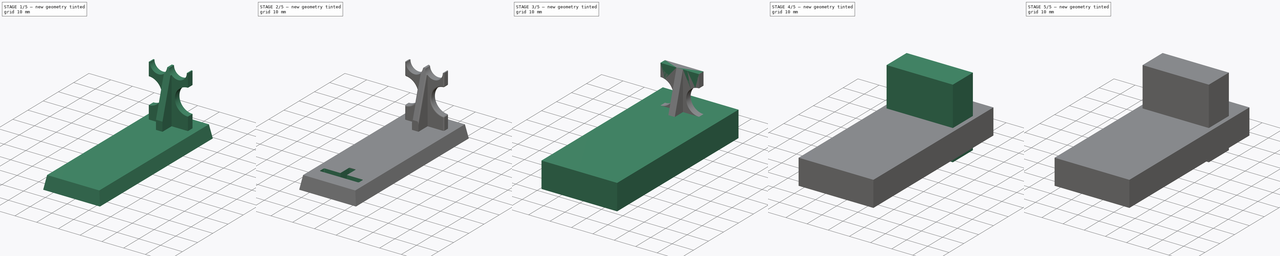
[diagram: build sequence overview — one tinted view per stage of 5, left to right]
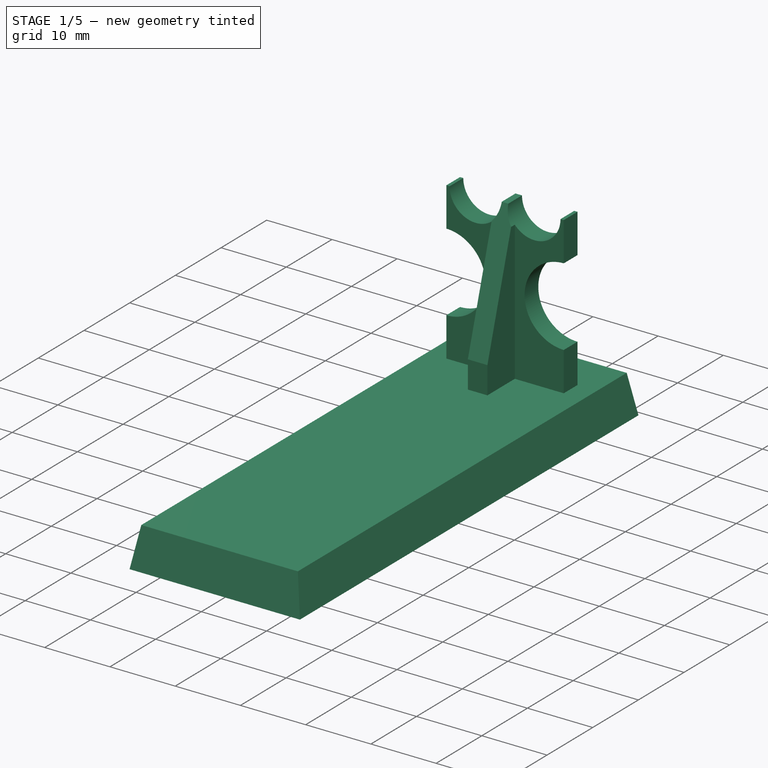
[diagram: stage 1 of 5 — iso view after this stage's code; geometry added in this stage tinted green]
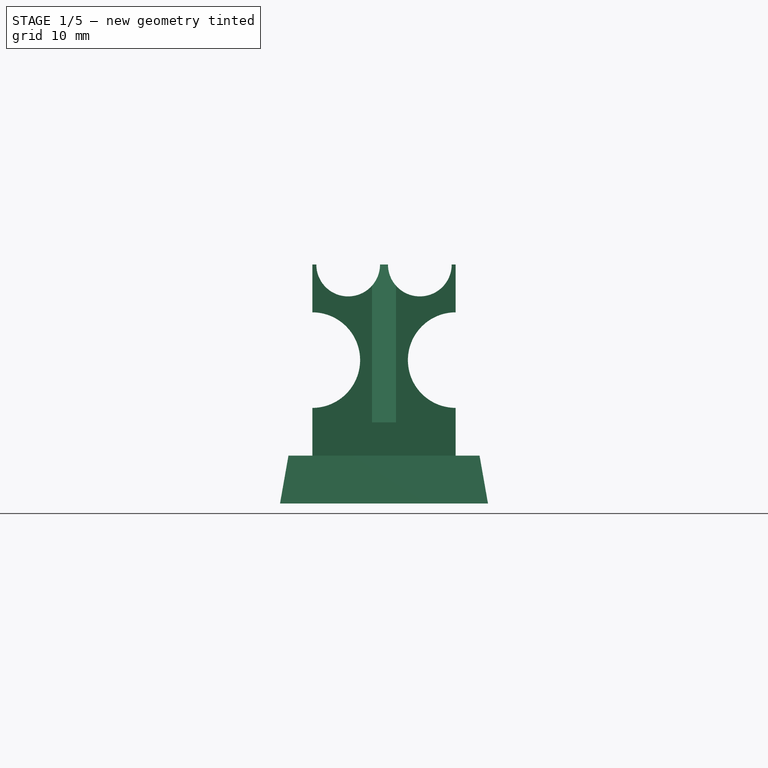
[diagram: stage 1 of 5 — front view after this stage's code; geometry added in this stage tinted green]
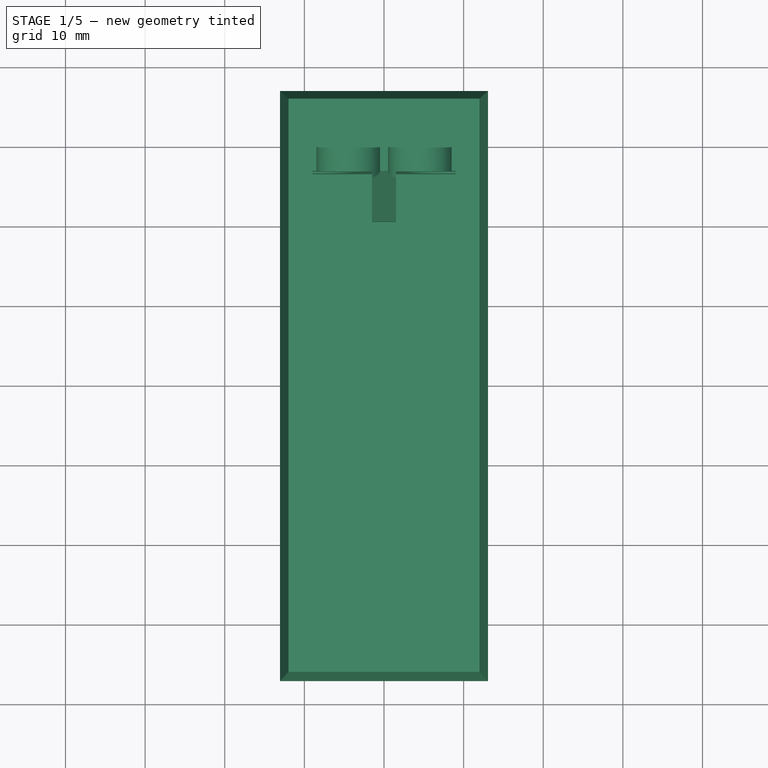
[diagram: stage 1 of 5 — top view after this stage's code; geometry added in this stage tinted green]
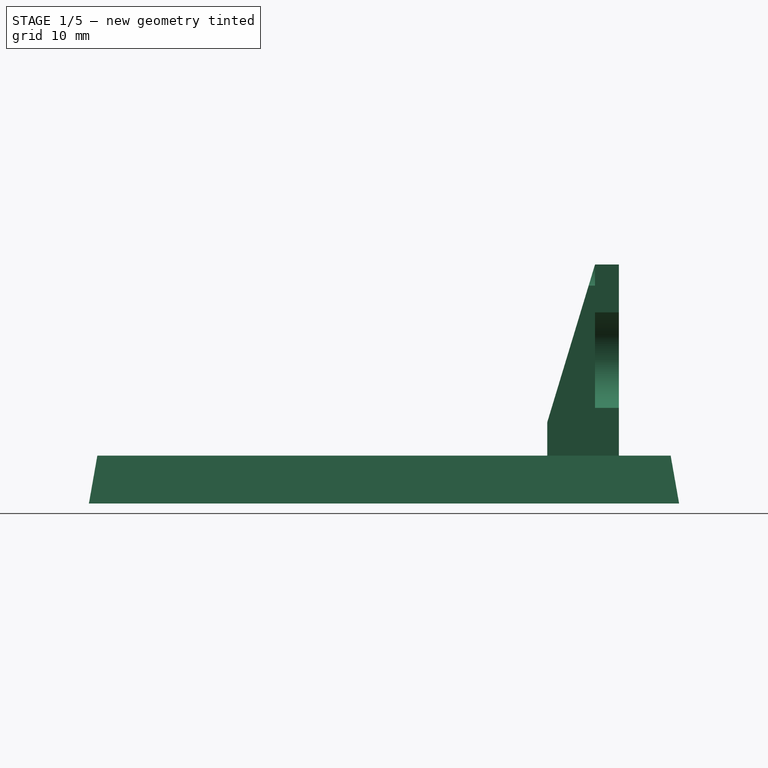
[diagram: stage 1 of 5 — right view after this stage's code; geometry added in this stage tinted green]
FCSTD DOCUMENT  (FreeCAD 1.0R39109 (Git))
Label: the_Vani_pen_stand
License: All rights reserved
LicenseURL: https://en.wikipedia.org/wiki/All_rights_reserved
objects: Sketcher::SketchObject×32, PartDesign::Pocket×21, PartDesign::Pad×11, PartDesign::Body×11, PartDesign::Fillet×7, PartDesign::Boolean×4, Spreadsheet::Sheet×1
note: 200 computed .brp shape members not serialized (recipe doc carries the construction recipe); baked Part::Feature solids carry a one-line shape summary decoded from their .brp

FEATURE [PartDesign::Body] Body007
  AllowCompound = false
  Group = -> [Sketch019,Pad007,Sketch020,Pocket012,Sketch021,Pocket013,Sketch022,Pocket014,Fillet004]
  Origin = -> Origin007
  Placement = pos=(0,0,-4) rot=(0,0,1;0rad)
  Tip = -> Fillet004
FEATURE [Sketcher::SketchObject] Sketch023
  ArcFitTolerance = 1e-06
  AttachmentSupport = -> [XY_Plane009]
  FullyConstrained = true
  MakeInternals = false
  MapMode = 5
  expr: Constraints[10] = Spreadsheet.stand_base_width
  expr: Constraints[11] = Spreadsheet.stand_base_length
  sketch-geometry (5):
    g0: LineSegment StartX=12 StartY=-36 StartZ=0 EndX=12 EndY=36 EndZ=0
    g1: LineSegment StartX=12 StartY=36 StartZ=0 EndX=-12 EndY=36 EndZ=0
    g2: LineSegment StartX=-12 StartY=36 StartZ=0 EndX=-12 EndY=-36 EndZ=0
    g3: LineSegment StartX=-12 StartY=-36 StartZ=0 EndX=12 EndY=-36 EndZ=0
    g4: GeomPoint [constr] X=0 Y=0 Z=0
  constraints (12):
    c: Coincident(g0,g1)
    c: Coincident(g1,g2)
    c: Coincident(g2,g3)
    c: Coincident(g3,g0)
    c: Vertical(g0)
    c: Vertical(g2)
    c: Horizontal(g1)
    c: Horizontal(g3)
    c: Symmetric(g2,g0,g4)
    c: Coincident(g4,g-1)
    c: DistanceX(g1,g1) = 24
    c: DistanceY(g0,g0) = 72
FEATURE [PartDesign::Pad] Pad008
  Direction = (0,0,1)
  Length = 6
  Length2 = 10
  Profile = -> Sketch023
  ReferenceAxis = -> Sketch023 [N_Axis]
  Refine = true
  Reversed = true
  Suppressed = false
  TaperAngle = 10
  Type = 0
  expr: Length = Spreadsheet.stand_base_thickness
FEATURE [Sketcher::SketchObject] Sketch024
  ArcFitTolerance = 1e-06
  AttachmentSupport = -> [XY_Plane010]
  FullyConstrained = true
  MakeInternals = false
  MapMode = 5
  expr: Constraints[10] = Spreadsheet.stand_support_leg_width
  expr: Constraints[11] = Spreadsheet.stand_support_leg_thickness
  expr: Constraints[23] = Spreadsheet.stand_support_leg_thickness
  expr: Constraints[24] = Spreadsheet.stand_support_leg_width / 2
  expr: Constraints[25] = Spreadsheet.stand_support_separation / 2
  sketch-geometry (10):
    g0: LineSegment StartX=9 StartY=29.5 StartZ=0 EndX=-9 EndY=29.5 EndZ=0
    g1: LineSegment StartX=-9 StartY=29.5 StartZ=0 EndX=-9 EndY=26.5 EndZ=0
    g2: LineSegment StartX=-9 StartY=26.5 StartZ=0 EndX=9 EndY=26.5 EndZ=0
    g3: LineSegment StartX=9 StartY=26.5 StartZ=0 EndX=9 EndY=29.5 EndZ=0
    g4: GeomPoint [constr] X=0 Y=28 Z=0
    g5: LineSegment StartX=1.5 StartY=20.5 StartZ=0 EndX=1.5 EndY=26.5 EndZ=0
    g6: LineSegment StartX=1.5 StartY=26.5 StartZ=0 EndX=-1.5 EndY=26.5 EndZ=0
    g7: LineSegment StartX=-1.5 StartY=26.5 StartZ=0 EndX=-1.5 EndY=20.5 EndZ=0
    g8: LineSegment StartX=-1.5 StartY=20.5 StartZ=0 EndX=1.5 EndY=20.5 EndZ=0
    g9: GeomPoint [constr] X=0 Y=23.5 Z=0
  constraints (26):
    c: Coincident(g0,g1)
    c: Coincident(g1,g2)
    c: Coincident(g2,g3)
    c: Coincident(g3,g0)
    c: Horizontal(g0)
    c: Horizontal(g2)
    c: Vertical(g1)
    c: Vertical(g3)
    c: Symmetric(g2,g0,g4)
    c: PointOnObject(g4,g-2)
    c: DistanceX(g0,g0) = 18
    c: DistanceY(g3,g3) = 3
    c: Coincident(g5,g6)
    c: Coincident(g6,g7)
    c: Coincident(g7,g8)
    c: Coincident(g8,g5)
    c: Vertical(g5)
    c: Vertical(g7)
    c: Horizontal(g6)
    c: Horizontal(g8)
    c: Symmetric(g7,g5,g9)
    c: PointOnObject(g9,g-2)
    c: PointOnObject(g6,g2)
    c: DistanceX(g8,g8) = 3
    c: DistanceY(g5,g0) = 9
    c: DistanceY(g-1,g4) = 28
FEATURE [PartDesign::Pad] Pad009
  Direction = (0,0,1)
  Length = 24
  Length2 = 10
  Profile = -> Sketch024
  ReferenceAxis = -> Sketch024 [N_Axis]
  Refine = true
  Suppressed = false
  Type = 0
  expr: Length = Spreadsheet.stand_support_height
FEATURE [Sketcher::SketchObject] Sketch025
  ArcFitTolerance = 1e-06
  AttachmentSupport = -> [Pad009]
  ExternalGeometry = -> [Pad009]
  FullyConstrained = true
  MakeInternals = false
  MapMode = 5
  Placement = pos=(0,29.5,0) rot=(0,0.707107,0.707107;3.14159rad)
  sketch-geometry (2):
    g0: Circle CenterX=9 CenterY=12 CenterZ=0 NormalX=0 NormalY=0 NormalZ=1 AngleXU=0 Radius=6
    g1: Circle CenterX=-9 CenterY=12 CenterZ=0 NormalX=0 NormalY=0 NormalZ=1 AngleXU=0 Radius=6
  constraints (4):
    c: Symmetric(g-3,g-3,g0)
    c: Symmetric(g-4,g-4,g1)
    c: Equal(g1,g0)
    c: Diameter(g1) = 12
FEATURE [PartDesign::Pocket] Pocket015
  BaseFeature = -> Pad009
  Direction = (0,-1,2e-16)
  Length = 5
  Length2 = 5
  Profile = -> Sketch025
  ReferenceAxis = -> Sketch025 [N_Axis]
  Refine = true
  Suppressed = false
  Type = 0
FEATURE [Sketcher::SketchObject] Sketch026
  ArcFitTolerance = 1e-06
  AttachmentSupport = -> [Pocket015]
  ExternalGeometry = -> [Pocket015]
  FullyConstrained = false
  MakeInternals = false
  MapMode = 5
  Placement = pos=(-1.5,0,0) rot=(0.57735,-0.57735,-0.57735;2.0944rad)
  sketch-geometry (3):
    g0: LineSegment StartX=-26.5 StartY=24 StartZ=0 EndX=-20.5 EndY=24 EndZ=0
    g1: LineSegment StartX=-20.5 StartY=24 StartZ=0 EndX=-20.5 EndY=4.18863 EndZ=0
    g2: LineSegment StartX=-20.5 StartY=4.18863 StartZ=0 EndX=-26.5 EndY=24 EndZ=0
  constraints (6):
    c: Coincident(g-4,g0)
    c: Coincident(g0,g-4)
    c: Coincident(g0,g1)
    c: PointOnObject(g1,g-3)
    c: Coincident(g1,g2)
    c: Coincident(g2,g0)
FEATURE [PartDesign::Pocket] Pocket016
  BaseFeature = -> Pocket015
  Direction = (1,0,0)
  Length = 5
  Length2 = 5
  Profile = -> Sketch026
  ReferenceAxis = -> Sketch026 [N_Axis]
  Refine = true
  Suppressed = false
  Type = 0
FEATURE [Sketcher::SketchObject] Sketch027
  ArcFitTolerance = 1e-06
  AttachmentSupport = -> [Pocket016]
  ExternalGeometry = -> [Pocket016]
  FullyConstrained = true
  MakeInternals = false
  MapMode = 5
  Placement = pos=(0,29.5,0) rot=(0,0.707107,0.707107;3.14159rad)
  expr: Constraints[0] = Spreadsheet.crayon_diameter
  expr: Constraints[1] = Spreadsheet.crayon_diameter
  sketch-geometry (3):
    g0: Circle CenterX=4.5 CenterY=24 CenterZ=0 NormalX=0 NormalY=0 NormalZ=1 AngleXU=0 Radius=4
    g1: Circle CenterX=-4.5 CenterY=24 CenterZ=0 NormalX=0 NormalY=0 NormalZ=1 AngleXU=0 Radius=4
    g2: GeomPoint X=0 Y=24 Z=0
  constraints (5):
    c: Diameter(g0) = 8
    c: Diameter(g1) = 8
    c: Symmetric(g-3,g-3,g2)
    c: Symmetric(g2,g-3,g1)
    c: Symmetric(g-3,g2,g0)
FEATURE [PartDesign::Pocket] Pocket017
  BaseFeature = -> Pocket016
  Direction = (0,-1,2e-16)
  Length = 5
  Length2 = 5
  Profile = -> Sketch027
  ReferenceAxis = -> Sketch027 [N_Axis]
  Refine = true
  Suppressed = false
  Type = 0
FEATURE [PartDesign::Body] Body009
  AllowCompound = false
  Group = -> [Sketch024,Pad009,Sketch025,Pocket015,Sketch026,Pocket016,Sketch027,Pocket017,Fillet005]
  Origin = -> Origin008
  Placement = pos=(0,0,-4) rot=(0,0,1;0rad)
  Tip = -> Fillet005
FEATURE [Sketcher::SketchObject] Sketch028
  ArcFitTolerance = 1e-06
  AttachmentSupport = -> [XY_Plane010]
  FullyConstrained = true
  MakeInternals = false
  MapMode = 5
  expr: Constraints[10] = Spreadsheet.stand_support_leg_width
  expr: Constraints[11] = Spreadsheet.stand_support_leg_thickness
  expr: Constraints[23] = Spreadsheet.stand_support_leg_thickness
  expr: Constraints[24] = Spreadsheet.stand_support_leg_width / 2
  expr: Constraints[25] = Spreadsheet.stand_support_separation / 2
  sketch-geometry (10):
    g0: LineSegment StartX=9 StartY=29.5 StartZ=0 EndX=-9 EndY=29.5 EndZ=0
    g1: LineSegment StartX=-9 StartY=29.5 StartZ=0 EndX=-9 EndY=26.5 EndZ=0
    g2: LineSegment StartX=-9 StartY=26.5 StartZ=0 EndX=9 EndY=26.5 EndZ=0
    g3: LineSegment StartX=9 StartY=26.5 StartZ=0 EndX=9 EndY=29.5 EndZ=0
    g4: GeomPoint [constr] X=0 Y=28 Z=0
    g5: LineSegment StartX=1.5 StartY=20.5 StartZ=0 EndX=1.5 EndY=26.5 EndZ=0
    g6: LineSegment StartX=1.5 StartY=26.5 StartZ=0 EndX=-1.5 EndY=26.5 EndZ=0
    g7: LineSegment StartX=-1.5 StartY=26.5 StartZ=0 EndX=-1.5 EndY=20.5 EndZ=0
    g8: LineSegment StartX=-1.5 StartY=20.5 StartZ=0 EndX=1.5 EndY=20.5 EndZ=0
    g9: GeomPoint [constr] X=0 Y=23.5 Z=0
  constraints (26):
    c: Coincident(g0,g1)
    c: Coincident(g1,g2)
    c: Coincident(g2,g3)
    c: Coincident(g3,g0)
    c: Horizontal(g0)
    c: Horizontal(g2)
    c: Vertical(g1)
    c: Vertical(g3)
    c: Symmetric(g2,g0,g4)
    c: PointOnObject(g4,g-2)
    c: DistanceX(g0,g0) = 18
    c: DistanceY(g3,g3) = 3
    c: Coincident(g5,g6)
    c: Coincident(g6,g7)
    c: Coincident(g7,g8)
    c: Coincident(g8,g5)
    c: Vertical(g5)
    c: Vertical(g7)
    c: Horizontal(g6)
    c: Horizontal(g8)
    c: Symmetric(g7,g5,g9)
    c: PointOnObject(g9,g-2)
    c: PointOnObject(g6,g2)
    c: DistanceX(g8,g8) = 3
    c: DistanceY(g5,g0) = 9
    c: DistanceY(g-1,g4) = 28
FEATURE [PartDesign::Pad] Pad010
  Direction = (0,0,1)
  Length = 24
  Length2 = 10
  Profile = -> Sketch028
  ReferenceAxis = -> Sketch028 [N_Axis]
  Refine = true
  Suppressed = false
  Type = 0
  expr: Length = Spreadsheet.stand_support_height
FEATURE [Sketcher::SketchObject] Sketch029
  ArcFitTolerance = 1e-06
  AttachmentSupport = -> [Pad010]
  ExternalGeometry = -> [Pad010]
  FullyConstrained = true
  MakeInternals = false
  MapMode = 5
  Placement = pos=(0,29.5,0) rot=(0,0.707107,0.707107;3.14159rad)
  sketch-geometry (2):
    g0: Circle CenterX=9 CenterY=12 CenterZ=0 NormalX=0 NormalY=0 NormalZ=1 AngleXU=0 Radius=6
    g1: Circle CenterX=-9 CenterY=12 CenterZ=0 NormalX=0 NormalY=0 NormalZ=1 AngleXU=0 Radius=6
  constraints (4):
    c: Symmetric(g-3,g-3,g0)
    c: Symmetric(g-4,g-4,g1)
    c: Equal(g1,g0)
    c: Diameter(g1) = 12
FEATURE [PartDesign::Pocket] Pocket018
  BaseFeature = -> Pad010
  Direction = (0,-1,2e-16)
  Length = 5
  Length2 = 5
  Profile = -> Sketch029
  ReferenceAxis = -> Sketch029 [N_Axis]
  Refine = true
  Suppressed = false
  Type = 0
FEATURE [Sketcher::SketchObject] Sketch030
  ArcFitTolerance = 1e-06
  AttachmentSupport = -> [Pocket018]
  ExternalGeometry = -> [Pocket018]
  FullyConstrained = false
  MakeInternals = false
  MapMode = 5
  Placement = pos=(-1.5,0,0) rot=(0.57735,-0.57735,-0.57735;2.0944rad)
  sketch-geometry (3):
    g0: LineSegment StartX=-26.5 StartY=24 StartZ=0 EndX=-20.5 EndY=24 EndZ=0
    g1: LineSegment StartX=-20.5 StartY=24 StartZ=0 EndX=-20.5 EndY=4.18863 EndZ=0
    g2: LineSegment StartX=-20.5 StartY=4.18863 StartZ=0 EndX=-26.5 EndY=24 EndZ=0
  constraints (6):
    c: Coincident(g-4,g0)
    c: Coincident(g0,g-4)
    c: Coincident(g0,g1)
    c: PointOnObject(g1,g-3)
    c: Coincident(g1,g2)
    c: Coincident(g2,g0)
FEATURE [PartDesign::Pocket] Pocket019
  BaseFeature = -> Pocket018
  Direction = (1,0,0)
  Length = 5
  Length2 = 5
  Profile = -> Sketch030
  ReferenceAxis = -> Sketch030 [N_Axis]
  Refine = true
  Suppressed = false
  Type = 0
FEATURE [Sketcher::SketchObject] Sketch031
  ArcFitTolerance = 1e-06
  AttachmentSupport = -> [Pocket019]
  ExternalGeometry = -> [Pocket019]
  FullyConstrained = true
  MakeInternals = false
  MapMode = 5
  Placement = pos=(0,29.5,0) rot=(0,0.707107,0.707107;3.14159rad)
  expr: Constraints[0] = Spreadsheet.crayon_diameter
  expr: Constraints[1] = Spreadsheet.crayon_diameter
  sketch-geometry (3):
    g0: Circle CenterX=4.5 CenterY=24 CenterZ=0 NormalX=0 NormalY=0 NormalZ=1 AngleXU=0 Radius=4
    g1: Circle CenterX=-4.5 CenterY=24 CenterZ=0 NormalX=0 NormalY=0 NormalZ=1 AngleXU=0 Radius=4
    g2: GeomPoint X=0 Y=24 Z=0
  constraints (5):
    c: Diameter(g0) = 8
    c: Diameter(g1) = 8
    c: Symmetric(g-3,g-3,g2)
    c: Symmetric(g2,g-3,g1)
    c: Symmetric(g-3,g2,g0)
FEATURE [PartDesign::Pocket] Pocket020
  BaseFeature = -> Pocket019
  Direction = (0,-1,2e-16)
  Length = 5
  Length2 = 5
  Profile = -> Sketch031
  ReferenceAxis = -> Sketch031 [N_Axis]
  Refine = true
  Suppressed = false
  Type = 0
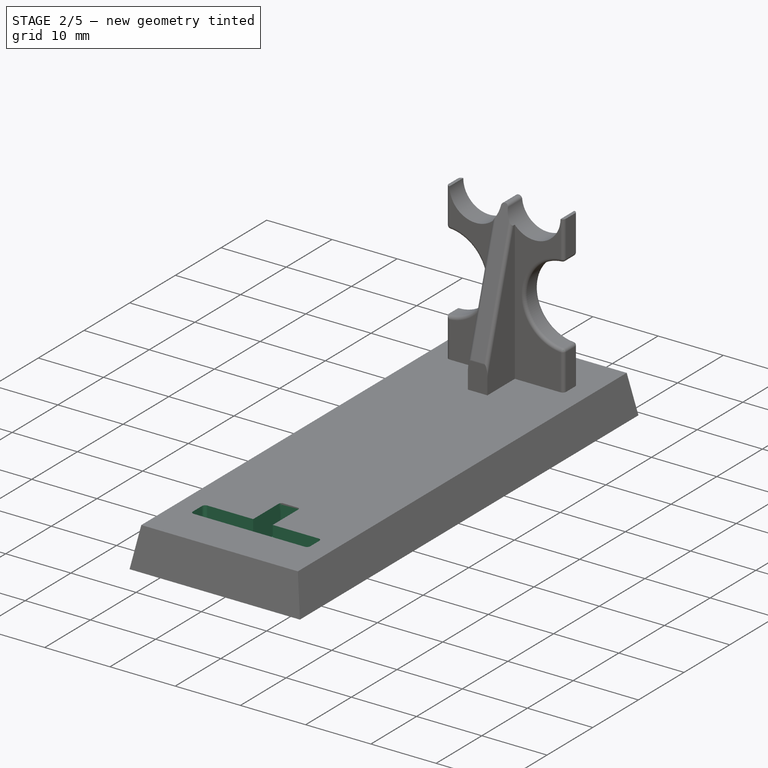
[diagram: stage 2 of 5 — iso view after this stage's code; geometry added in this stage tinted green]
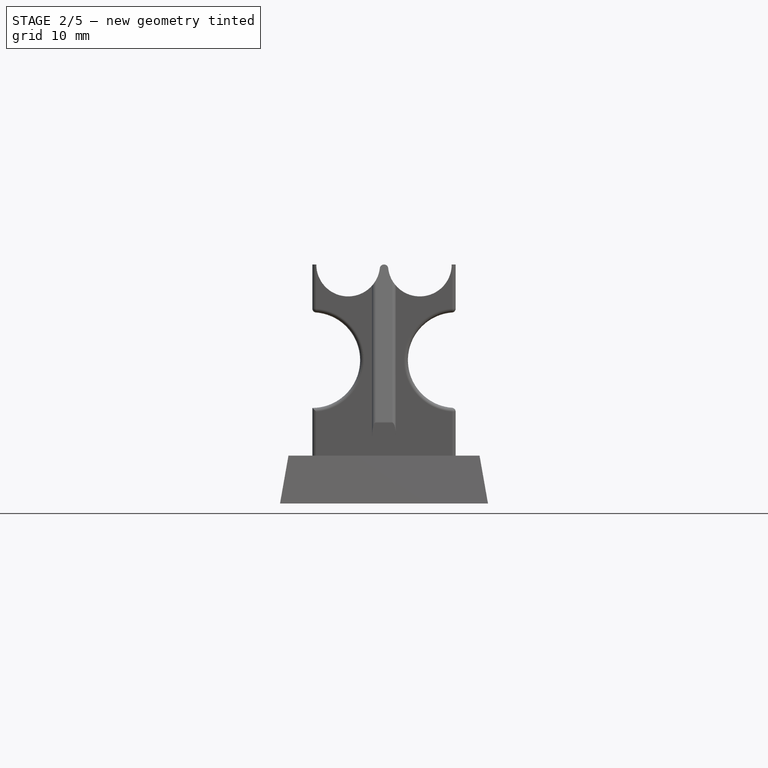
[diagram: stage 2 of 5 — front view after this stage's code; geometry added in this stage tinted green]
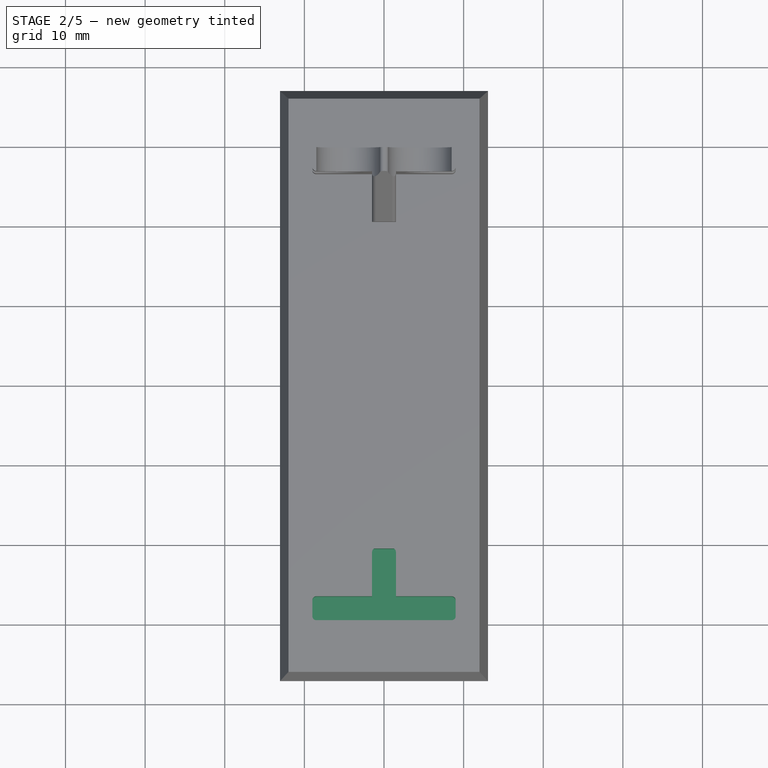
[diagram: stage 2 of 5 — top view after this stage's code; geometry added in this stage tinted green]
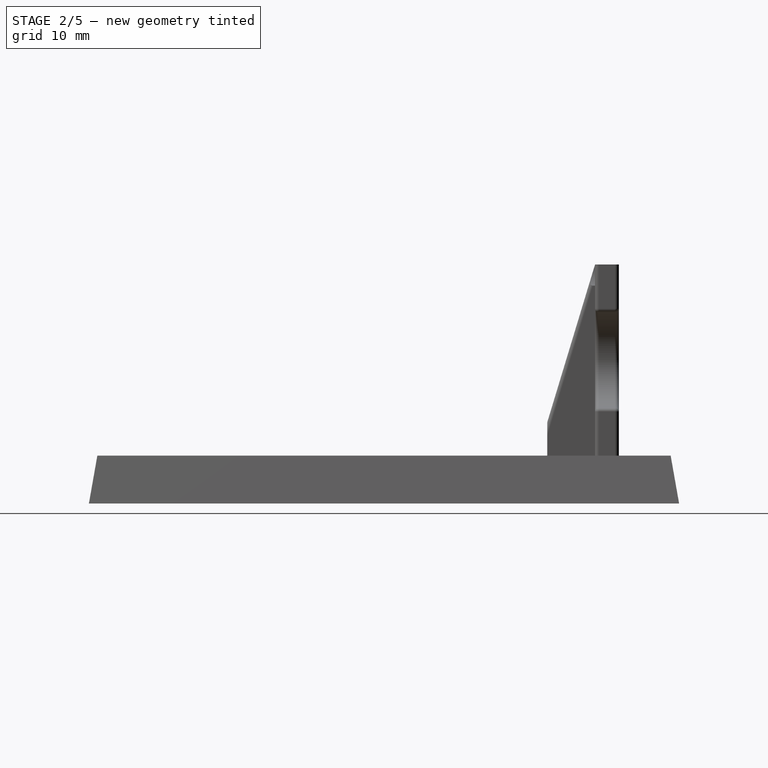
[diagram: stage 2 of 5 — right view after this stage's code; geometry added in this stage tinted green]
FEATURE [PartDesign::Body] Body006
  AllowCompound = false
  Group = -> [Sketch018,Pad006,Boolean002]
  Origin = -> Origin006
  Tip = -> Boolean002
FEATURE [Sketcher::SketchObject] Sketch019
  ArcFitTolerance = 1e-06
  AttachmentSupport = -> [XY_Plane007]
  FullyConstrained = true
  MakeInternals = false
  MapMode = 5
  expr: Constraints[10] = Spreadsheet.stand_support_leg_width
  expr: Constraints[11] = Spreadsheet.stand_support_leg_thickness
  expr: Constraints[23] = Spreadsheet.stand_support_leg_thickness
  expr: Constraints[24] = Spreadsheet.stand_support_leg_width / 2
  expr: Constraints[25] = Spreadsheet.stand_support_separation / 2
  sketch-geometry (10):
    g0: LineSegment StartX=9 StartY=29.5 StartZ=0 EndX=-9 EndY=29.5 EndZ=0
    g1: LineSegment StartX=-9 StartY=29.5 StartZ=0 EndX=-9 EndY=26.5 EndZ=0
    g2: LineSegment StartX=-9 StartY=26.5 StartZ=0 EndX=9 EndY=26.5 EndZ=0
    g3: LineSegment StartX=9 StartY=26.5 StartZ=0 EndX=9 EndY=29.5 EndZ=0
    g4: GeomPoint [constr] X=0 Y=28 Z=0
    g5: LineSegment StartX=1.5 StartY=20.5 StartZ=0 EndX=1.5 EndY=26.5 EndZ=0
    g6: LineSegment StartX=1.5 StartY=26.5 StartZ=0 EndX=-1.5 EndY=26.5 EndZ=0
    g7: LineSegment StartX=-1.5 StartY=26.5 StartZ=0 EndX=-1.5 EndY=20.5 EndZ=0
    g8: LineSegment StartX=-1.5 StartY=20.5 StartZ=0 EndX=1.5 EndY=20.5 EndZ=0
    g9: GeomPoint [constr] X=0 Y=23.5 Z=0
  constraints (26):
    c: Coincident(g0,g1)
    c: Coincident(g1,g2)
    c: Coincident(g2,g3)
    c: Coincident(g3,g0)
    c: Horizontal(g0)
    c: Horizontal(g2)
    c: Vertical(g1)
    c: Vertical(g3)
    c: Symmetric(g2,g0,g4)
    c: PointOnObject(g4,g-2)
    c: DistanceX(g0,g0) = 18
    c: DistanceY(g3,g3) = 3
    c: Coincident(g5,g6)
    c: Coincident(g6,g7)
    c: Coincident(g7,g8)
    c: Coincident(g8,g5)
    c: Vertical(g5)
    c: Vertical(g7)
    c: Horizontal(g6)
    c: Horizontal(g8)
    c: Symmetric(g7,g5,g9)
    c: PointOnObject(g9,g-2)
    c: PointOnObject(g6,g2)
    c: DistanceX(g8,g8) = 3
    c: DistanceY(g5,g0) = 9
    c: DistanceY(g-1,g4) = 28
FEATURE [PartDesign::Pad] Pad007
  Direction = (0,0,1)
  Length = 24
  Length2 = 10
  Profile = -> Sketch019
  ReferenceAxis = -> Sketch019 [N_Axis]
  Refine = true
  Suppressed = false
  Type = 0
  expr: Length = Spreadsheet.stand_support_height
FEATURE [Sketcher::SketchObject] Sketch020
  ArcFitTolerance = 1e-06
  AttachmentSupport = -> [Pad007]
  ExternalGeometry = -> [Pad007]
  FullyConstrained = true
  MakeInternals = false
  MapMode = 5
  Placement = pos=(0,29.5,0) rot=(0,0.707107,0.707107;3.14159rad)
  sketch-geometry (2):
    g0: Circle CenterX=9 CenterY=12 CenterZ=0 NormalX=0 NormalY=0 NormalZ=1 AngleXU=0 Radius=6
    g1: Circle CenterX=-9 CenterY=12 CenterZ=0 NormalX=0 NormalY=0 NormalZ=1 AngleXU=0 Radius=6
  constraints (4):
    c: Symmetric(g-3,g-3,g0)
    c: Symmetric(g-4,g-4,g1)
    c: Equal(g1,g0)
    c: Diameter(g1) = 12
FEATURE [PartDesign::Pocket] Pocket012
  BaseFeature = -> Pad007
  Direction = (0,-1,2e-16)
  Length = 5
  Length2 = 5
  Profile = -> Sketch020
  ReferenceAxis = -> Sketch020 [N_Axis]
  Refine = true
  Suppressed = false
  Type = 0
FEATURE [Sketcher::SketchObject] Sketch021
  ArcFitTolerance = 1e-06
  AttachmentSupport = -> [Pocket012]
  ExternalGeometry = -> [Pocket012]
  FullyConstrained = false
  MakeInternals = false
  MapMode = 5
  Placement = pos=(-1.5,0,0) rot=(0.57735,-0.57735,-0.57735;2.0944rad)
  sketch-geometry (3):
    g0: LineSegment StartX=-26.5 StartY=24 StartZ=0 EndX=-20.5 EndY=24 EndZ=0
    g1: LineSegment StartX=-20.5 StartY=24 StartZ=0 EndX=-20.5 EndY=4.18863 EndZ=0
    g2: LineSegment StartX=-20.5 StartY=4.18863 StartZ=0 EndX=-26.5 EndY=24 EndZ=0
  constraints (6):
    c: Coincident(g-4,g0)
    c: Coincident(g0,g-4)
    c: Coincident(g0,g1)
    c: PointOnObject(g1,g-3)
    c: Coincident(g1,g2)
    c: Coincident(g2,g0)
FEATURE [PartDesign::Pocket] Pocket013
  BaseFeature = -> Pocket012
  Direction = (1,0,0)
  Length = 5
  Length2 = 5
  Profile = -> Sketch021
  ReferenceAxis = -> Sketch021 [N_Axis]
  Refine = true
  Suppressed = false
  Type = 0
FEATURE [Sketcher::SketchObject] Sketch022
  ArcFitTolerance = 1e-06
  AttachmentSupport = -> [Pocket013]
  ExternalGeometry = -> [Pocket013]
  FullyConstrained = true
  MakeInternals = false
  MapMode = 5
  Placement = pos=(0,29.5,0) rot=(0,0.707107,0.707107;3.14159rad)
  expr: Constraints[0] = Spreadsheet.crayon_diameter
  expr: Constraints[1] = Spreadsheet.crayon_diameter
  sketch-geometry (3):
    g0: Circle CenterX=4.5 CenterY=24 CenterZ=0 NormalX=0 NormalY=0 NormalZ=1 AngleXU=0 Radius=4
    g1: Circle CenterX=-4.5 CenterY=24 CenterZ=0 NormalX=0 NormalY=0 NormalZ=1 AngleXU=0 Radius=4
    g2: GeomPoint X=0 Y=24 Z=0
  constraints (5):
    c: Diameter(g0) = 8
    c: Diameter(g1) = 8
    c: Symmetric(g-3,g-3,g2)
    c: Symmetric(g2,g-3,g1)
    c: Symmetric(g-3,g2,g0)
FEATURE [PartDesign::Pocket] Pocket014
  BaseFeature = -> Pocket013
  Direction = (0,-1,2e-16)
  Length = 5
  Length2 = 5
  Profile = -> Sketch022
  ReferenceAxis = -> Sketch022 [N_Axis]
  Refine = true
  Suppressed = false
  Type = 0
FEATURE [PartDesign::Fillet] Fillet004
  Base = -> Pocket014 [Edge12,Edge11,Edge10,Edge4,Edge3,Edge2,Edge13,Edge44,Edge45,Edge42,Edge41,Edge43,Edge46,Edge21,Edge23,Edge25,Vertex21,Edge24,Edge52,Edge50,Edge48,Edge33,Edge32]
  BaseFeature = -> Pocket014
  Radius = 0.5
  Refine = true
  SupportTransform = false
  Suppressed = false
  UseAllEdges = false
  expr: Radius = Spreadsheet.stand_default_fillet
FEATURE [PartDesign::Fillet] Fillet005
  Base = -> Pocket017 [Edge12,Edge11,Edge10,Edge4,Edge3,Edge2,Edge13,Edge44,Edge45,Edge42,Edge41,Edge43,Edge46,Edge21,Edge23,Edge25,Vertex21,Edge24,Edge52,Edge50,Edge48,Edge33,Edge32]
  BaseFeature = -> Pocket017
  Radius = 0.5
  Refine = true
  SupportTransform = false
  Suppressed = false
  UseAllEdges = false
  expr: Radius = Spreadsheet.stand_default_fillet
FEATURE [PartDesign::Fillet] Fillet006
  Base = -> Pocket020 [Edge12,Edge11,Edge10,Edge4,Edge3,Edge2,Edge13,Edge44,Edge45,Edge42,Edge41,Edge43,Edge46,Edge21,Edge23,Edge25,Vertex21,Edge24,Edge52,Edge50,Edge48,Edge33,Edge32]
  BaseFeature = -> Pocket020
  Radius = 0.5
  Refine = true
  SupportTransform = false
  Suppressed = false
  UseAllEdges = false
  expr: Radius = Spreadsheet.stand_default_fillet
FEATURE [PartDesign::Body] Body010
  AllowCompound = false
  Group = -> [Sketch028,Pad010,Sketch029,Pocket018,Sketch030,Pocket019,Sketch031,Pocket020,Fillet006]
  Origin = -> Origin009
  Placement = pos=(0,0,-4) rot=(0,0,1;3.14159rad)
  Tip = -> Fillet006
FEATURE [PartDesign::Boolean] Boolean003
  BaseFeature = -> Pad008
  Group = -> [Body009,Body010]
  Refine = true
  Suppressed = false
  Type = 1
  UsePlacement = true
FEATURE [PartDesign::Body] Body008
  AllowCompound = false
  Group = -> [Sketch023,Pad008,Boolean003]
  Origin = -> Origin010
  Tip = -> Boolean003
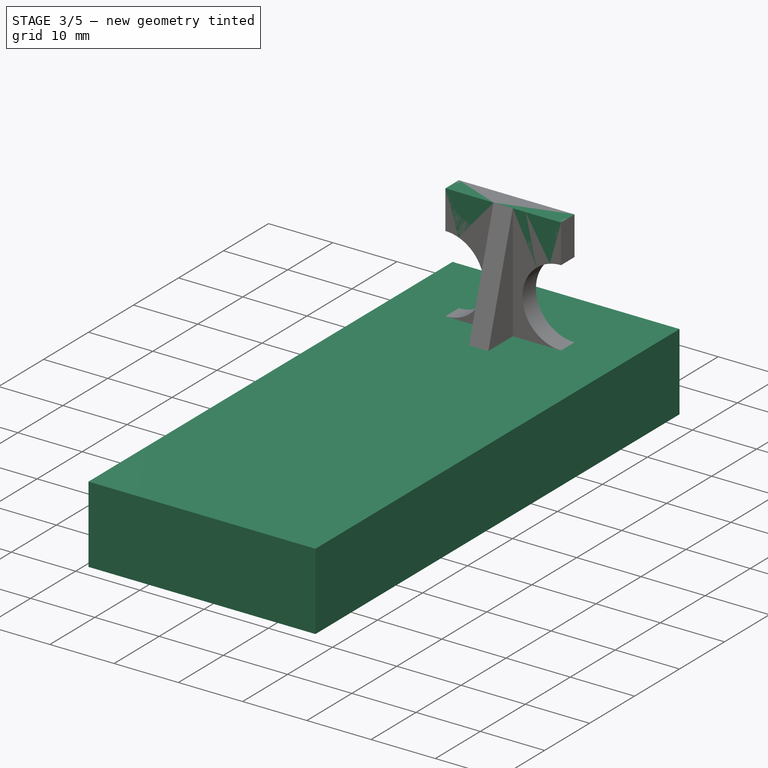
[diagram: stage 3 of 5 — iso view after this stage's code; geometry added in this stage tinted green]
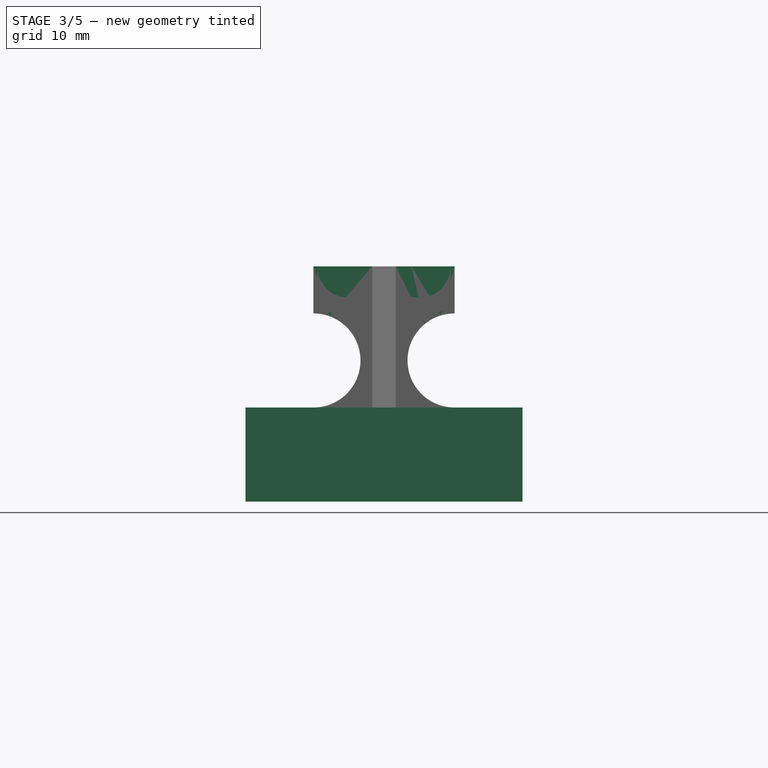
[diagram: stage 3 of 5 — front view after this stage's code; geometry added in this stage tinted green]
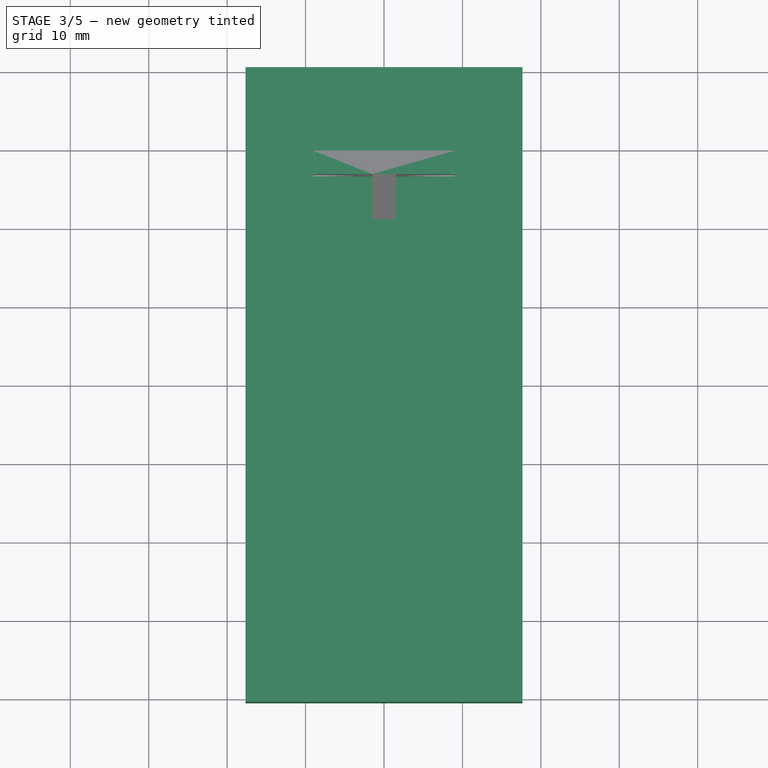
[diagram: stage 3 of 5 — top view after this stage's code; geometry added in this stage tinted green]
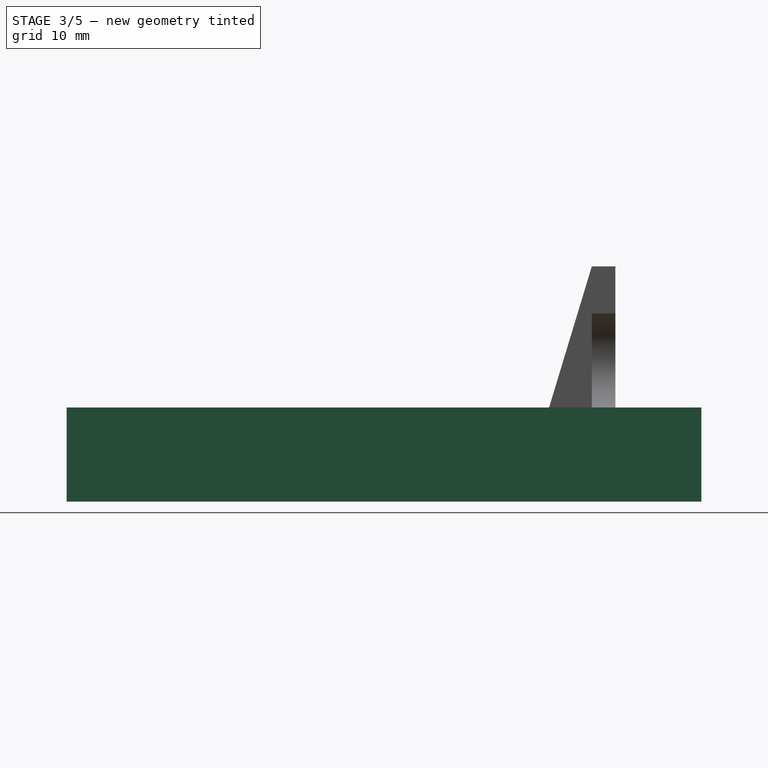
[diagram: stage 3 of 5 — right view after this stage's code; geometry added in this stage tinted green]
FEATURE [Sketcher::SketchObject] Sketch001
  ArcFitTolerance = 1e-06
  AttachmentSupport = -> [XY_Plane001]
  FullyConstrained = true
  MakeInternals = false
  MapMode = 5
  expr: Constraints[10] = Spreadsheet.stand_support_leg_width
  expr: Constraints[11] = Spreadsheet.stand_support_leg_thickness
  expr: Constraints[23] = Spreadsheet.stand_support_leg_thickness
  expr: Constraints[24] = Spreadsheet.stand_support_leg_width / 2
  expr: Constraints[25] = Spreadsheet.stand_support_separation / 2
  sketch-geometry (10):
    g0: LineSegment StartX=9 StartY=29.5 StartZ=0 EndX=-9 EndY=29.5 EndZ=0
    g1: LineSegment StartX=-9 StartY=29.5 StartZ=0 EndX=-9 EndY=26.5 EndZ=0
    g2: LineSegment StartX=-9 StartY=26.5 StartZ=0 EndX=9 EndY=26.5 EndZ=0
    g3: LineSegment StartX=9 StartY=26.5 StartZ=0 EndX=9 EndY=29.5 EndZ=0
    g4: GeomPoint [constr] X=0 Y=28 Z=0
    g5: LineSegment StartX=1.5 StartY=20.5 StartZ=0 EndX=1.5 EndY=26.5 EndZ=0
    g6: LineSegment StartX=1.5 StartY=26.5 StartZ=0 EndX=-1.5 EndY=26.5 EndZ=0
    g7: LineSegment StartX=-1.5 StartY=26.5 StartZ=0 EndX=-1.5 EndY=20.5 EndZ=0
    g8: LineSegment StartX=-1.5 StartY=20.5 StartZ=0 EndX=1.5 EndY=20.5 EndZ=0
    g9: GeomPoint [constr] X=0 Y=23.5 Z=0
  constraints (26):
    c: Coincident(g0,g1)
    c: Coincident(g1,g2)
    c: Coincident(g2,g3)
    c: Coincident(g3,g0)
    c: Horizontal(g0)
    c: Horizontal(g2)
    c: Vertical(g1)
    c: Vertical(g3)
    c: Symmetric(g2,g0,g4)
    c: PointOnObject(g4,g-2)
    c: DistanceX(g0,g0) = 18
    c: DistanceY(g3,g3) = 3
    c: Coincident(g5,g6)
    c: Coincident(g6,g7)
    c: Coincident(g7,g8)
    c: Coincident(g8,g5)
    c: Vertical(g5)
    c: Vertical(g7)
    c: Horizontal(g6)
    c: Horizontal(g8)
    c: Symmetric(g7,g5,g9)
    c: PointOnObject(g9,g-2)
    c: PointOnObject(g6,g2)
    c: DistanceX(g8,g8) = 3
    c: DistanceY(g5,g0) = 9
    c: DistanceY(g-1,g4) = 28
FEATURE [PartDesign::Pad] Pad001
  Direction = (0,0,1)
  Length = 24
  Length2 = 10
  Profile = -> Sketch001
  ReferenceAxis = -> Sketch001 [N_Axis]
  Refine = true
  Suppressed = false
  Type = 0
  expr: Length = Spreadsheet.stand_support_height
FEATURE [Sketcher::SketchObject] Sketch002
  ArcFitTolerance = 1e-06
  AttachmentSupport = -> [Pad001]
  ExternalGeometry = -> [Pad001]
  FullyConstrained = true
  MakeInternals = false
  MapMode = 5
  Placement = pos=(0,29.5,0) rot=(0,0.707107,0.707107;3.14159rad)
  sketch-geometry (2):
    g0: Circle CenterX=9 CenterY=12 CenterZ=0 NormalX=0 NormalY=0 NormalZ=1 AngleXU=0 Radius=6
    g1: Circle CenterX=-9 CenterY=12 CenterZ=0 NormalX=0 NormalY=0 NormalZ=1 AngleXU=0 Radius=6
  constraints (4):
    c: Symmetric(g-3,g-3,g0)
    c: Symmetric(g-4,g-4,g1)
    c: Equal(g1,g0)
    c: Diameter(g1) = 12
FEATURE [PartDesign::Pocket] Pocket
  BaseFeature = -> Pad001
  Direction = (0,-1,2e-16)
  Length = 5
  Length2 = 5
  Profile = -> Sketch002
  ReferenceAxis = -> Sketch002 [N_Axis]
  Refine = true
  Suppressed = false
  Type = 0
FEATURE [Sketcher::SketchObject] Sketch003
  ArcFitTolerance = 1e-06
  AttachmentSupport = -> [Pocket]
  ExternalGeometry = -> [Pocket]
  FullyConstrained = false
  MakeInternals = false
  MapMode = 5
  Placement = pos=(-1.5,0,0) rot=(0.57735,-0.57735,-0.57735;2.0944rad)
  sketch-geometry (3):
    g0: LineSegment StartX=-26.5 StartY=24 StartZ=0 EndX=-20.5 EndY=24 EndZ=0
    g1: LineSegment StartX=-20.5 StartY=24 StartZ=0 EndX=-20.5 EndY=4.18863 EndZ=0
    g2: LineSegment StartX=-20.5 StartY=4.18863 StartZ=0 EndX=-26.5 EndY=24 EndZ=0
  constraints (6):
    c: Coincident(g-4,g0)
    c: Coincident(g0,g-4)
    c: Coincident(g0,g1)
    c: PointOnObject(g1,g-3)
    c: Coincident(g1,g2)
    c: Coincident(g2,g0)
FEATURE [PartDesign::Pocket] Pocket001
  BaseFeature = -> Pocket
  Direction = (1,0,0)
  Length = 5
  Length2 = 5
  Profile = -> Sketch003
  ReferenceAxis = -> Sketch003 [N_Axis]
  Refine = true
  Suppressed = false
  Type = 0
FEATURE [PartDesign::Body] Body001
  AllowCompound = false
  Group = -> [Sketch001,Pad001,Sketch002,Pocket,Sketch003,Pocket001,Sketch004,Pocket002,Fillet]
  Origin = -> Origin001
  Placement = pos=(0,0,-4) rot=(0,0,1;0rad)
  Tip = -> Fillet
FEATURE [Sketcher::SketchObject] Sketch005
  ArcFitTolerance = 1e-06
  AttachmentSupport = -> [XY_Plane001]
  FullyConstrained = true
  MakeInternals = false
  MapMode = 5
  expr: Constraints[10] = Spreadsheet.stand_support_leg_width
  expr: Constraints[11] = Spreadsheet.stand_support_leg_thickness
  expr: Constraints[23] = Spreadsheet.stand_support_leg_thickness
  expr: Constraints[24] = Spreadsheet.stand_support_leg_width / 2
  expr: Constraints[25] = Spreadsheet.stand_support_separation / 2
  sketch-geometry (10):
    g0: LineSegment StartX=9 StartY=29.5 StartZ=0 EndX=-9 EndY=29.5 EndZ=0
    g1: LineSegment StartX=-9 StartY=29.5 StartZ=0 EndX=-9 EndY=26.5 EndZ=0
    g2: LineSegment StartX=-9 StartY=26.5 StartZ=0 EndX=9 EndY=26.5 EndZ=0
    g3: LineSegment StartX=9 StartY=26.5 StartZ=0 EndX=9 EndY=29.5 EndZ=0
    g4: GeomPoint [constr] X=0 Y=28 Z=0
    g5: LineSegment StartX=1.5 StartY=20.5 StartZ=0 EndX=1.5 EndY=26.5 EndZ=0
    g6: LineSegment StartX=1.5 StartY=26.5 StartZ=0 EndX=-1.5 EndY=26.5 EndZ=0
    g7: LineSegment StartX=-1.5 StartY=26.5 StartZ=0 EndX=-1.5 EndY=20.5 EndZ=0
    g8: LineSegment StartX=-1.5 StartY=20.5 StartZ=0 EndX=1.5 EndY=20.5 EndZ=0
    g9: GeomPoint [constr] X=0 Y=23.5 Z=0
  constraints (26):
    c: Coincident(g0,g1)
    c: Coincident(g1,g2)
    c: Coincident(g2,g3)
    c: Coincident(g3,g0)
    c: Horizontal(g0)
    c: Horizontal(g2)
    c: Vertical(g1)
    c: Vertical(g3)
    c: Symmetric(g2,g0,g4)
    c: PointOnObject(g4,g-2)
    c: DistanceX(g0,g0) = 18
    c: DistanceY(g3,g3) = 3
    c: Coincident(g5,g6)
    c: Coincident(g6,g7)
    c: Coincident(g7,g8)
    c: Coincident(g8,g5)
    c: Vertical(g5)
    c: Vertical(g7)
    c: Horizontal(g6)
    c: Horizontal(g8)
    c: Symmetric(g7,g5,g9)
    c: PointOnObject(g9,g-2)
    c: PointOnObject(g6,g2)
    c: DistanceX(g8,g8) = 3
    c: DistanceY(g5,g0) = 9
    c: DistanceY(g-1,g4) = 28
FEATURE [PartDesign::Pad] Pad002
  Direction = (0,0,1)
  Length = 24
  Length2 = 10
  Profile = -> Sketch005
  ReferenceAxis = -> Sketch005 [N_Axis]
  Refine = true
  Suppressed = false
  Type = 0
  expr: Length = Spreadsheet.stand_support_height
FEATURE [Sketcher::SketchObject] Sketch006
  ArcFitTolerance = 1e-06
  AttachmentSupport = -> [Pad002]
  ExternalGeometry = -> [Pad002]
  FullyConstrained = true
  MakeInternals = false
  MapMode = 5
  Placement = pos=(0,29.5,0) rot=(0,0.707107,0.707107;3.14159rad)
  sketch-geometry (2):
    g0: Circle CenterX=9 CenterY=12 CenterZ=0 NormalX=0 NormalY=0 NormalZ=1 AngleXU=0 Radius=6
    g1: Circle CenterX=-9 CenterY=12 CenterZ=0 NormalX=0 NormalY=0 NormalZ=1 AngleXU=0 Radius=6
  constraints (4):
    c: Symmetric(g-3,g-3,g0)
    c: Symmetric(g-4,g-4,g1)
    c: Equal(g1,g0)
    c: Diameter(g1) = 12
FEATURE [PartDesign::Pocket] Pocket003
  BaseFeature = -> Pad002
  Direction = (0,-1,2e-16)
  Length = 5
  Length2 = 5
  Profile = -> Sketch006
  ReferenceAxis = -> Sketch006 [N_Axis]
  Refine = true
  Suppressed = false
  Type = 0
FEATURE [Sketcher::SketchObject] Sketch007
  ArcFitTolerance = 1e-06
  AttachmentSupport = -> [Pocket003]
  ExternalGeometry = -> [Pocket003]
  FullyConstrained = false
  MakeInternals = false
  MapMode = 5
  Placement = pos=(-1.5,0,0) rot=(0.57735,-0.57735,-0.57735;2.0944rad)
  sketch-geometry (3):
    g0: LineSegment StartX=-26.5 StartY=24 StartZ=0 EndX=-20.5 EndY=24 EndZ=0
    g1: LineSegment StartX=-20.5 StartY=24 StartZ=0 EndX=-20.5 EndY=4.18863 EndZ=0
    g2: LineSegment StartX=-20.5 StartY=4.18863 StartZ=0 EndX=-26.5 EndY=24 EndZ=0
  constraints (6):
    c: Coincident(g-4,g0)
    c: Coincident(g0,g-4)
    c: Coincident(g0,g1)
    c: PointOnObject(g1,g-3)
    c: Coincident(g1,g2)
    c: Coincident(g2,g0)
FEATURE [PartDesign::Pocket] Pocket004
  BaseFeature = -> Pocket003
  Direction = (1,0,0)
  Length = 5
  Length2 = 5
  Profile = -> Sketch007
  ReferenceAxis = -> Sketch007 [N_Axis]
  Refine = true
  Suppressed = false
  Type = 0
FEATURE [Sketcher::SketchObject] Sketch008
  ArcFitTolerance = 1e-06
  AttachmentSupport = -> [Pocket004]
  ExternalGeometry = -> [Pocket004]
  FullyConstrained = true
  MakeInternals = false
  MapMode = 5
  Placement = pos=(0,29.5,0) rot=(0,0.707107,0.707107;3.14159rad)
  expr: Constraints[0] = Spreadsheet.crayon_diameter
  expr: Constraints[1] = Spreadsheet.crayon_diameter
  sketch-geometry (3):
    g0: Circle CenterX=4.5 CenterY=24 CenterZ=0 NormalX=0 NormalY=0 NormalZ=1 AngleXU=0 Radius=4
    g1: Circle CenterX=-4.5 CenterY=24 CenterZ=0 NormalX=0 NormalY=0 NormalZ=1 AngleXU=0 Radius=4
    g2: GeomPoint X=0 Y=24 Z=0
  constraints (5):
    c: Diameter(g0) = 8
    c: Diameter(g1) = 8
    c: Symmetric(g-3,g-3,g2)
    c: Symmetric(g2,g-3,g1)
    c: Symmetric(g-3,g2,g0)
FEATURE [PartDesign::Pocket] Pocket005
  BaseFeature = -> Pocket004
  Direction = (0,-1,2e-16)
  Length = 5
  Length2 = 5
  Profile = -> Sketch008
  ReferenceAxis = -> Sketch008 [N_Axis]
  Refine = true
  Suppressed = false
  Type = 0
FEATURE [PartDesign::Fillet] Fillet001
  Base = -> Pocket005 [Edge12,Edge11,Edge10,Edge4,Edge3,Edge2,Edge13,Edge44,Edge45,Edge42,Edge41,Edge43,Edge46,Edge21,Edge23,Edge25,Vertex21,Edge24,Edge52,Edge50,Edge48,Edge33,Edge32]
  BaseFeature = -> Pocket005
  Radius = 0.5
  Refine = true
  SupportTransform = false
  Suppressed = false
  UseAllEdges = false
  expr: Radius = Spreadsheet.stand_default_fillet
FEATURE [PartDesign::Body] Body005
  AllowCompound = false
  Group = -> [Sketch017,Pad005,Boolean001]
  Origin = -> Origin005
  Tip = -> Boolean001
FEATURE [Sketcher::SketchObject] Sketch018
  ArcFitTolerance = 1e-06
  AttachmentSupport = -> [XY_Plane006]
  FullyConstrained = false
  MakeInternals = false
  MapMode = 5
  sketch-geometry (5):
    g0: LineSegment StartX=17.6639 StartY=-40.4673 StartZ=0 EndX=17.6639 EndY=40.4673 EndZ=0
    g1: LineSegment StartX=17.6639 StartY=40.4673 StartZ=0 EndX=-17.6639 EndY=40.4673 EndZ=0
    g2: LineSegment StartX=-17.6639 StartY=40.4673 StartZ=0 EndX=-17.6639 EndY=-40.4673 EndZ=0
    g3: LineSegment StartX=-17.6639 StartY=-40.4673 StartZ=0 EndX=17.6639 EndY=-40.4673 EndZ=0
    g4: GeomPoint [constr] X=0 Y=0 Z=0
  constraints (10):
    c: Coincident(g0,g1)
    c: Coincident(g1,g2)
    c: Coincident(g2,g3)
    c: Coincident(g3,g0)
    c: Vertical(g0)
    c: Vertical(g2)
    c: Horizontal(g1)
    c: Horizontal(g3)
    c: Symmetric(g2,g0,g4)
    c: Coincident(g4,g-1)
FEATURE [PartDesign::Pad] Pad006
  Direction = (0,0,1)
  Length = 12
  Length2 = 10
  Midplane = true
  Profile = -> Sketch018
  ReferenceAxis = -> Sketch018 [N_Axis]
  Refine = true
  Suppressed = false
  Type = 0
  expr: Length = Spreadsheet.stand_base_thickness * 2
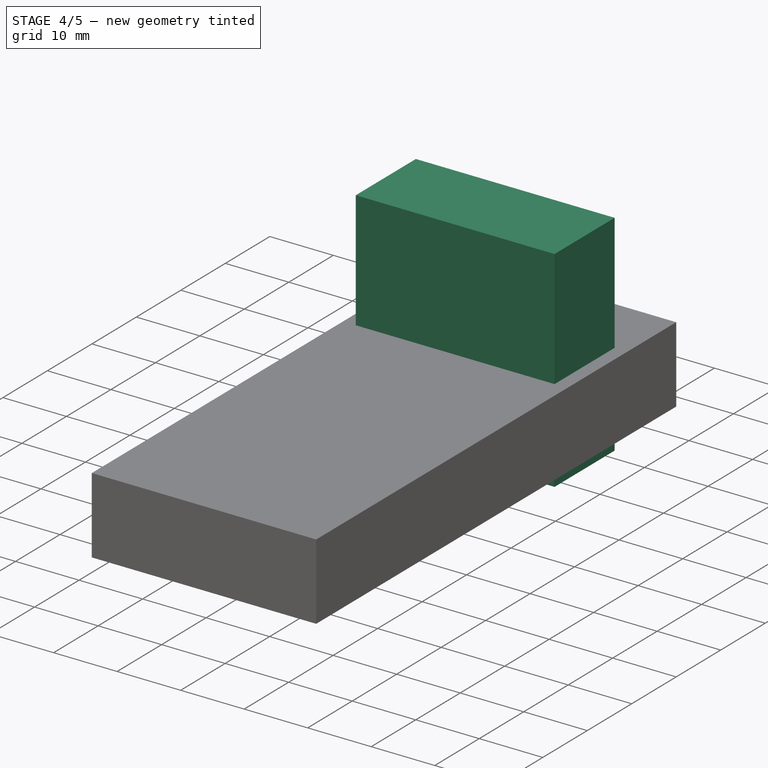
[diagram: stage 4 of 5 — iso view after this stage's code; geometry added in this stage tinted green]
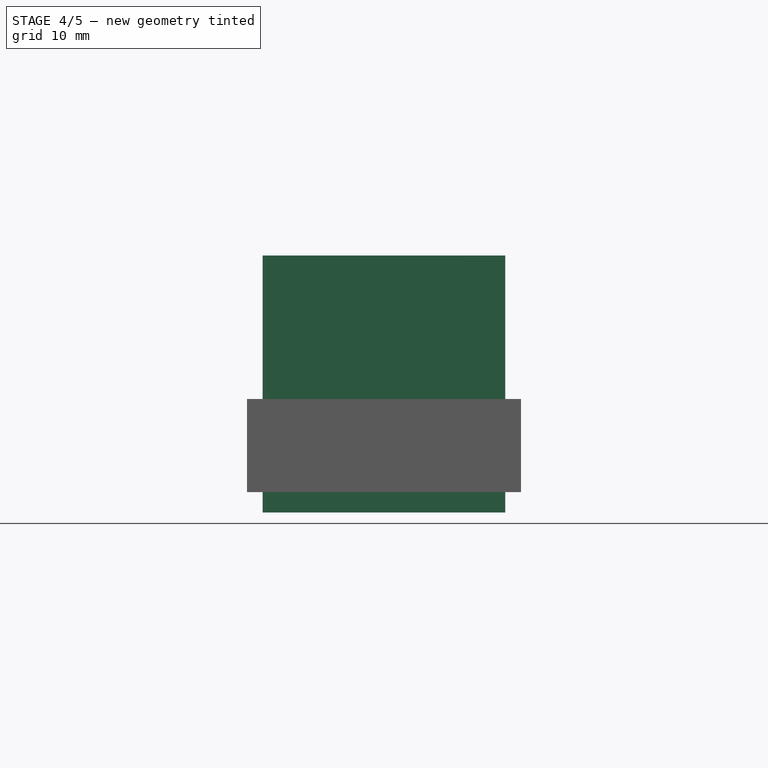
[diagram: stage 4 of 5 — front view after this stage's code; geometry added in this stage tinted green]
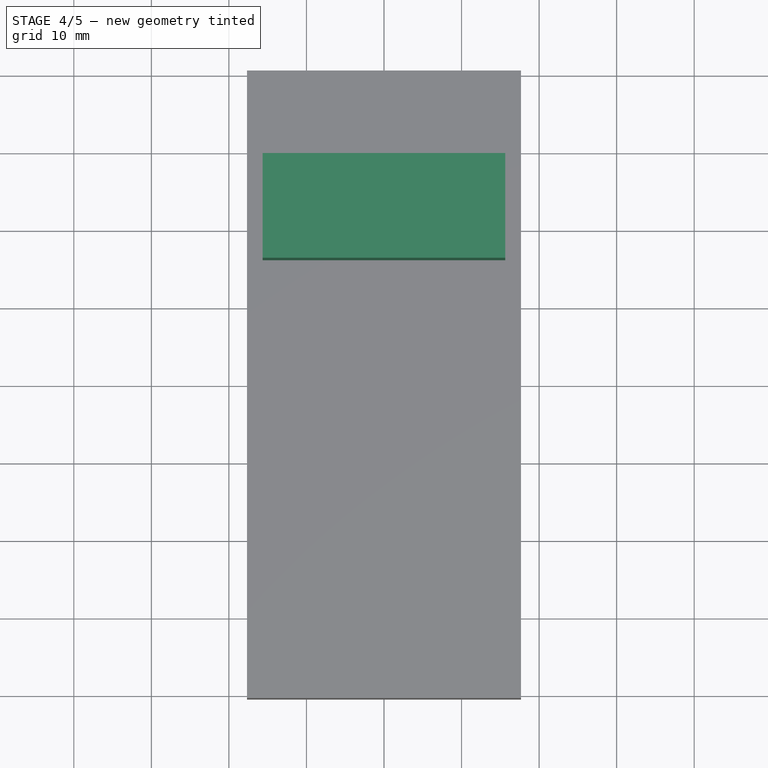
[diagram: stage 4 of 5 — top view after this stage's code; geometry added in this stage tinted green]
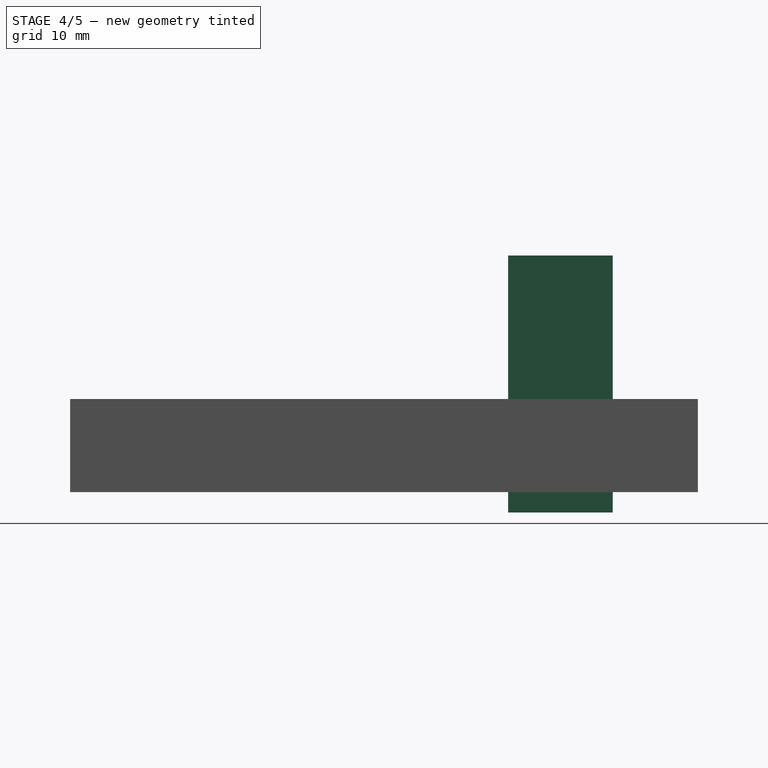
[diagram: stage 4 of 5 — right view after this stage's code; geometry added in this stage tinted green]
FEATURE [Sketcher::SketchObject] Sketch
  ArcFitTolerance = 1e-06
  AttachmentSupport = -> [XY_Plane]
  FullyConstrained = true
  MakeInternals = false
  MapMode = 5
  expr: Constraints[10] = Spreadsheet.stand_base_width
  expr: Constraints[11] = Spreadsheet.stand_base_length
  sketch-geometry (5):
    g0: LineSegment StartX=12 StartY=-36 StartZ=0 EndX=12 EndY=36 EndZ=0
    g1: LineSegment StartX=12 StartY=36 StartZ=0 EndX=-12 EndY=36 EndZ=0
    g2: LineSegment StartX=-12 StartY=36 StartZ=0 EndX=-12 EndY=-36 EndZ=0
    g3: LineSegment StartX=-12 StartY=-36 StartZ=0 EndX=12 EndY=-36 EndZ=0
    g4: GeomPoint [constr] X=0 Y=0 Z=0
  constraints (12):
    c: Coincident(g0,g1)
    c: Coincident(g1,g2)
    c: Coincident(g2,g3)
    c: Coincident(g3,g0)
    c: Vertical(g0)
    c: Vertical(g2)
    c: Horizontal(g1)
    c: Horizontal(g3)
    c: Symmetric(g2,g0,g4)
    c: Coincident(g4,g-1)
    c: DistanceX(g1,g1) = 24
    c: DistanceY(g0,g0) = 72
FEATURE [Spreadsheet::Sheet] Spreadsheet
  cells = A1='pen stand data; A2='Name; B2='Value; C2='Units; A3='stand support height; B3(stand_support_height)=24; C3='mm; A4='stand support leg width; B4(stand_support_leg_width)=18; C4='mm; A5='stand support leg thickness; B5(stand_support_leg_thickness)=3; C5='mm; A6='stand base width; B6(stand_base_width)=24; C6='mm; A7='stand base length; B7(stand_base_length)=72; C7='mm; A8='stand base thickness; B8(stand_base_thickness)=6; C8='mm; A9='stand default fillet; B9(stand_default_fillet)=0.5; C9='mm; A10='crayon diameter; B10(crayon_diameter)=8; C10='mm; D10='crayon brand appear to be closter to 7.7 mm; A11='stand support separation; B11(stand_support_separation)=56; C11='mm
FEATURE [PartDesign::Pad] Pad
  Direction = (0,0,1)
  Length = 6
  Length2 = 10
  Profile = -> Sketch
  ReferenceAxis = -> Sketch [N_Axis]
  Refine = true
  Reversed = true
  Suppressed = false
  TaperAngle = 10
  Type = 0
  expr: Length = Spreadsheet.stand_base_thickness
FEATURE [Sketcher::SketchObject] Sketch004
  ArcFitTolerance = 1e-06
  AttachmentSupport = -> [Pocket001]
  ExternalGeometry = -> [Pocket001]
  FullyConstrained = true
  MakeInternals = false
  MapMode = 5
  Placement = pos=(0,29.5,0) rot=(0,0.707107,0.707107;3.14159rad)
  expr: Constraints[0] = Spreadsheet.crayon_diameter
  expr: Constraints[1] = Spreadsheet.crayon_diameter
  sketch-geometry (3):
    g0: Circle CenterX=4.5 CenterY=24 CenterZ=0 NormalX=0 NormalY=0 NormalZ=1 AngleXU=0 Radius=4
    g1: Circle CenterX=-4.5 CenterY=24 CenterZ=0 NormalX=0 NormalY=0 NormalZ=1 AngleXU=0 Radius=4
    g2: GeomPoint X=0 Y=24 Z=0
  constraints (5):
    c: Diameter(g0) = 8
    c: Diameter(g1) = 8
    c: Symmetric(g-3,g-3,g2)
    c: Symmetric(g2,g-3,g1)
    c: Symmetric(g-3,g2,g0)
FEATURE [PartDesign::Pocket] Pocket002
  BaseFeature = -> Pocket001
  Direction = (0,-1,2e-16)
  Length = 5
  Length2 = 5
  Profile = -> Sketch004
  ReferenceAxis = -> Sketch004 [N_Axis]
  Refine = true
  Suppressed = false
  Type = 0
FEATURE [PartDesign::Fillet] Fillet
  Base = -> Pocket002 [Edge12,Edge11,Edge10,Edge4,Edge3,Edge2,Edge13,Edge44,Edge45,Edge42,Edge41,Edge43,Edge46,Edge21,Edge23,Edge25,Vertex21,Edge24,Edge52,Edge50,Edge48,Edge33,Edge32]
  BaseFeature = -> Pocket002
  Radius = 0.5
  Refine = true
  SupportTransform = false
  Suppressed = false
  UseAllEdges = false
  expr: Radius = Spreadsheet.stand_default_fillet
FEATURE [PartDesign::Body] Body002
  AllowCompound = false
  Group = -> [Sketch005,Pad002,Sketch006,Pocket003,Sketch007,Pocket004,Sketch008,Pocket005,Fillet001]
  Origin = -> Origin002
  Placement = pos=(0,0,-4) rot=(0,0,1;3.14159rad)
  Tip = -> Fillet001
FEATURE [PartDesign::Boolean] Boolean
  BaseFeature = -> Pad
  Group = -> [Body001,Body002]
  Refine = true
  Suppressed = false
  Type = 1
  UsePlacement = true
FEATURE [PartDesign::Body] Body
  AllowCompound = false
  Group = -> [Sketch,Pad,Boolean]
  Origin = -> Origin
  Tip = -> Boolean
FEATURE [Sketcher::SketchObject] Sketch009
  ArcFitTolerance = 1e-06
  AttachmentSupport = -> [XY_Plane001]
  FullyConstrained = true
  MakeInternals = false
  MapMode = 5
  expr: Constraints[10] = Spreadsheet.stand_support_leg_width
  expr: Constraints[11] = Spreadsheet.stand_support_leg_thickness
  expr: Constraints[23] = Spreadsheet.stand_support_leg_thickness
  expr: Constraints[24] = Spreadsheet.stand_support_leg_width / 2
  expr: Constraints[25] = Spreadsheet.stand_support_separation / 2
  sketch-geometry (10):
    g0: LineSegment StartX=9 StartY=29.5 StartZ=0 EndX=-9 EndY=29.5 EndZ=0
    g1: LineSegment StartX=-9 StartY=29.5 StartZ=0 EndX=-9 EndY=26.5 EndZ=0
    g2: LineSegment StartX=-9 StartY=26.5 StartZ=0 EndX=9 EndY=26.5 EndZ=0
    g3: LineSegment StartX=9 StartY=26.5 StartZ=0 EndX=9 EndY=29.5 EndZ=0
    g4: GeomPoint [constr] X=0 Y=28 Z=0
    g5: LineSegment StartX=1.5 StartY=20.5 StartZ=0 EndX=1.5 EndY=26.5 EndZ=0
    g6: LineSegment StartX=1.5 StartY=26.5 StartZ=0 EndX=-1.5 EndY=26.5 EndZ=0
    g7: LineSegment StartX=-1.5 StartY=26.5 StartZ=0 EndX=-1.5 EndY=20.5 EndZ=0
    g8: LineSegment StartX=-1.5 StartY=20.5 StartZ=0 EndX=1.5 EndY=20.5 EndZ=0
    g9: GeomPoint [constr] X=0 Y=23.5 Z=0
  constraints (26):
    c: Coincident(g0,g1)
    c: Coincident(g1,g2)
    c: Coincident(g2,g3)
    c: Coincident(g3,g0)
    c: Horizontal(g0)
    c: Horizontal(g2)
    c: Vertical(g1)
    c: Vertical(g3)
    c: Symmetric(g2,g0,g4)
    c: PointOnObject(g4,g-2)
    c: DistanceX(g0,g0) = 18
    c: DistanceY(g3,g3) = 3
    c: Coincident(g5,g6)
    c: Coincident(g6,g7)
    c: Coincident(g7,g8)
    c: Coincident(g8,g5)
    c: Vertical(g5)
    c: Vertical(g7)
    c: Horizontal(g6)
    c: Horizontal(g8)
    c: Symmetric(g7,g5,g9)
    c: PointOnObject(g9,g-2)
    c: PointOnObject(g6,g2)
    c: DistanceX(g8,g8) = 3
    c: DistanceY(g5,g0) = 9
    c: DistanceY(g-1,g4) = 28
FEATURE [PartDesign::Pad] Pad003
  Direction = (0,0,1)
  Length = 24
  Length2 = 10
  Profile = -> Sketch009
  ReferenceAxis = -> Sketch009 [N_Axis]
  Refine = true
  Suppressed = false
  Type = 0
  expr: Length = Spreadsheet.stand_support_height
FEATURE [Sketcher::SketchObject] Sketch010
  ArcFitTolerance = 1e-06
  AttachmentSupport = -> [Pad003]
  ExternalGeometry = -> [Pad003]
  FullyConstrained = true
  MakeInternals = false
  MapMode = 5
  Placement = pos=(0,29.5,0) rot=(0,0.707107,0.707107;3.14159rad)
  sketch-geometry (2):
    g0: Circle CenterX=9 CenterY=12 CenterZ=0 NormalX=0 NormalY=0 NormalZ=1 AngleXU=0 Radius=6
    g1: Circle CenterX=-9 CenterY=12 CenterZ=0 NormalX=0 NormalY=0 NormalZ=1 AngleXU=0 Radius=6
  constraints (4):
    c: Symmetric(g-3,g-3,g0)
    c: Symmetric(g-4,g-4,g1)
    c: Equal(g1,g0)
    c: Diameter(g1) = 12
FEATURE [PartDesign::Pocket] Pocket006
  BaseFeature = -> Pad003
  Direction = (0,-1,2e-16)
  Length = 5
  Length2 = 5
  Profile = -> Sketch010
  ReferenceAxis = -> Sketch010 [N_Axis]
  Refine = true
  Suppressed = false
  Type = 0
FEATURE [PartDesign::Body] Body004
  AllowCompound = false
  Group = -> [Sketch013,Pad004,Sketch014,Pocket009,Sketch015,Pocket010,Sketch016,Pocket011,Fillet003]
  Origin = -> Origin004
  Placement = pos=(0,0,-4) rot=(0,0,1;3.14159rad)
  Tip = -> Fillet003
FEATURE [Sketcher::SketchObject] Sketch017
  ArcFitTolerance = 1e-06
  AttachmentSupport = -> [Fillet003]
  FullyConstrained = false
  MakeInternals = false
  MapMode = 5
  Placement = pos=(0,29.5,0) rot=(0,0.707107,0.707107;3.14159rad)
  sketch-geometry (5):
    g0: LineSegment StartX=15.6435 StartY=-8.62427 StartZ=0 EndX=15.6435 EndY=24.5043 EndZ=0
    g1: LineSegment StartX=15.6435 StartY=24.5043 StartZ=0 EndX=-15.6435 EndY=24.5043 EndZ=0
    g2: LineSegment StartX=-15.6435 StartY=24.5043 StartZ=0 EndX=-15.6435 EndY=-8.62427 EndZ=0
    g3: LineSegment StartX=-15.6435 StartY=-8.62427 StartZ=0 EndX=15.6435 EndY=-8.62427 EndZ=0
    g4: GeomPoint [constr] X=0 Y=7.94004 Z=0
  constraints (10):
    c: Coincident(g0,g1)
    c: Coincident(g1,g2)
    c: Coincident(g2,g3)
    c: Coincident(g3,g0)
    c: Vertical(g0)
    c: Vertical(g2)
    c: Horizontal(g1)
    c: Horizontal(g3)
    c: Symmetric(g2,g0,g4)
    c: PointOnObject(g4,g-2)
FEATURE [PartDesign::Pad] Pad005
  Direction = (0,1,-2e-16)
  Length = 13.5
  Length2 = 10
  Profile = -> Sketch017
  ReferenceAxis = -> Sketch017 [N_Axis]
  Refine = true
  Reversed = true
  Suppressed = false
  Type = 0
  expr: Length = Spreadsheet.stand_support_leg_width * 0.75
FEATURE [PartDesign::Boolean] Boolean002
  BaseFeature = -> Pad006
  Group = -> [Body]
  Refine = true
  Suppressed = false
  Type = 1
  UsePlacement = true
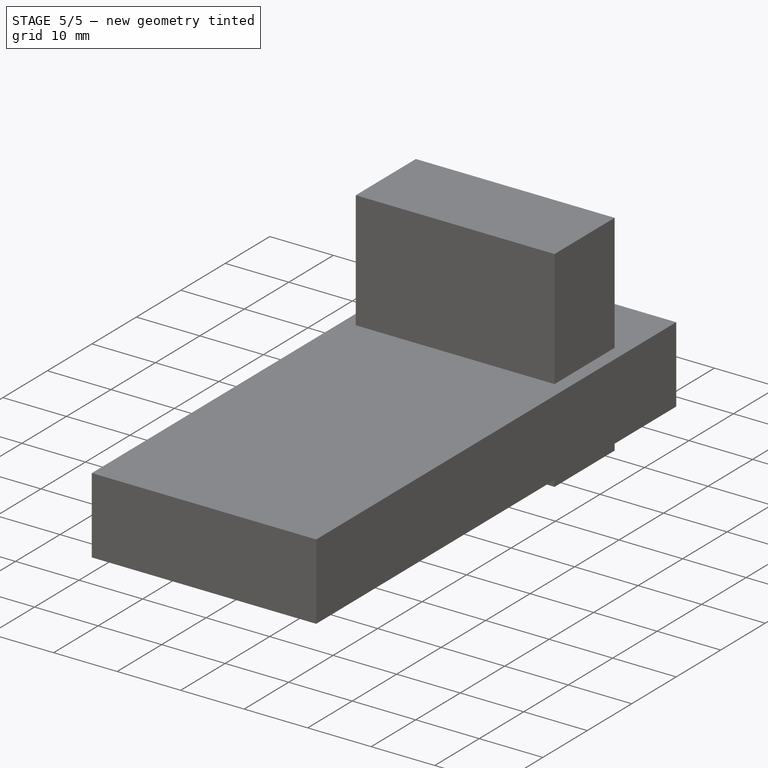
[diagram: stage 5 of 5 — iso view after this stage's code; geometry added in this stage tinted green]
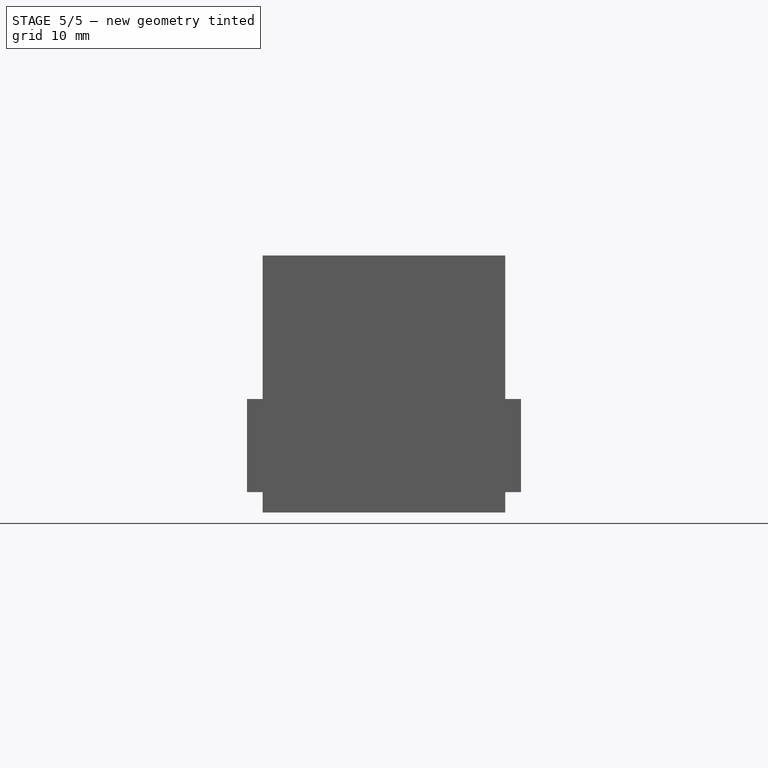
[diagram: stage 5 of 5 — front view after this stage's code; geometry added in this stage tinted green]
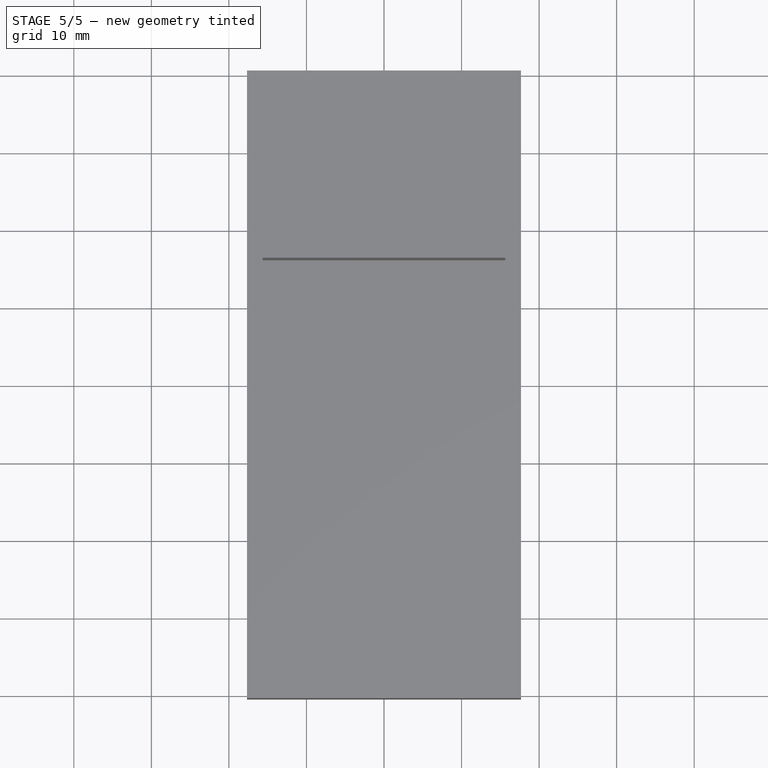
[diagram: stage 5 of 5 — top view after this stage's code; geometry added in this stage tinted green]
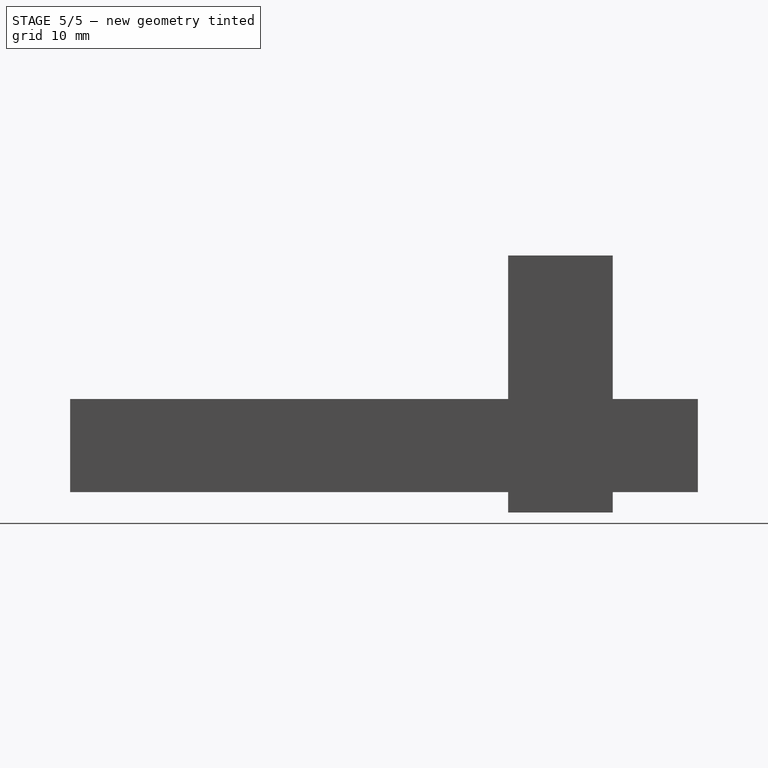
[diagram: stage 5 of 5 — right view after this stage's code; geometry added in this stage tinted green]
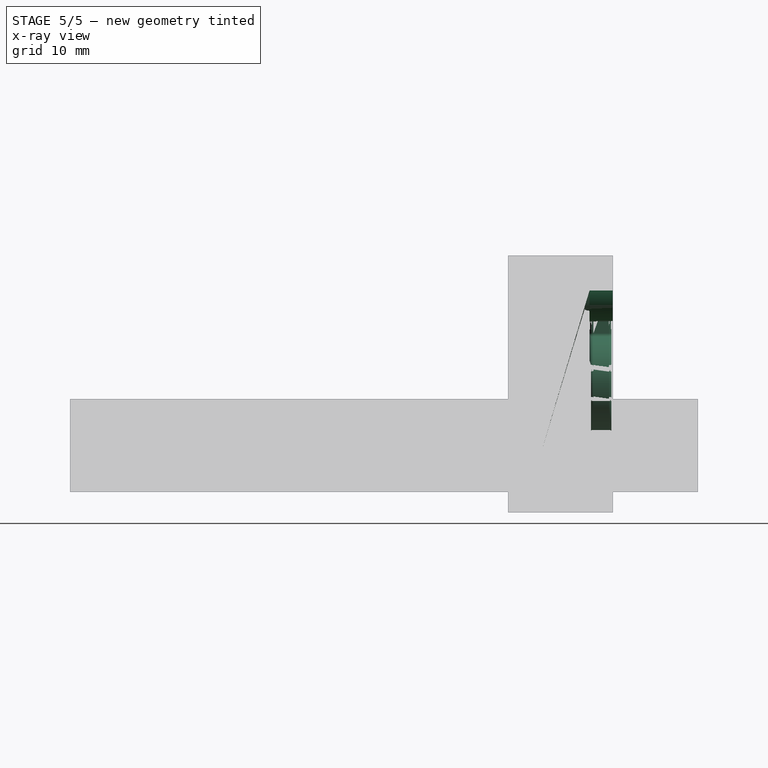
[diagram: stage 5 of 5 — x-ray composite at the right view; earlier geometry ghosted, this stage's added geometry solid]
FEATURE [Sketcher::SketchObject] Sketch011
  ArcFitTolerance = 1e-06
  AttachmentSupport = -> [Pocket006]
  ExternalGeometry = -> [Pocket006]
  FullyConstrained = false
  MakeInternals = false
  MapMode = 5
  Placement = pos=(-1.5,0,0) rot=(0.57735,-0.57735,-0.57735;2.0944rad)
  sketch-geometry (3):
    g0: LineSegment StartX=-26.5 StartY=24 StartZ=0 EndX=-20.5 EndY=24 EndZ=0
    g1: LineSegment StartX=-20.5 StartY=24 StartZ=0 EndX=-20.5 EndY=4.18863 EndZ=0
    g2: LineSegment StartX=-20.5 StartY=4.18863 StartZ=0 EndX=-26.5 EndY=24 EndZ=0
  constraints (6):
    c: Coincident(g-4,g0)
    c: Coincident(g0,g-4)
    c: Coincident(g0,g1)
    c: PointOnObject(g1,g-3)
    c: Coincident(g1,g2)
    c: Coincident(g2,g0)
FEATURE [PartDesign::Pocket] Pocket007
  BaseFeature = -> Pocket006
  Direction = (1,0,0)
  Length = 5
  Length2 = 5
  Profile = -> Sketch011
  ReferenceAxis = -> Sketch011 [N_Axis]
  Refine = true
  Suppressed = false
  Type = 0
FEATURE [Sketcher::SketchObject] Sketch012
  ArcFitTolerance = 1e-06
  AttachmentSupport = -> [Pocket007]
  ExternalGeometry = -> [Pocket007]
  FullyConstrained = true
  MakeInternals = false
  MapMode = 5
  Placement = pos=(0,29.5,0) rot=(0,0.707107,0.707107;3.14159rad)
  expr: Constraints[0] = Spreadsheet.crayon_diameter
  expr: Constraints[1] = Spreadsheet.crayon_diameter
  sketch-geometry (3):
    g0: Circle CenterX=4.5 CenterY=24 CenterZ=0 NormalX=0 NormalY=0 NormalZ=1 AngleXU=0 Radius=4
    g1: Circle CenterX=-4.5 CenterY=24 CenterZ=0 NormalX=0 NormalY=0 NormalZ=1 AngleXU=0 Radius=4
    g2: GeomPoint X=0 Y=24 Z=0
  constraints (5):
    c: Diameter(g0) = 8
    c: Diameter(g1) = 8
    c: Symmetric(g-3,g-3,g2)
    c: Symmetric(g2,g-3,g1)
    c: Symmetric(g-3,g2,g0)
FEATURE [PartDesign::Pocket] Pocket008
  BaseFeature = -> Pocket007
  Direction = (0,-1,2e-16)
  Length = 5
  Length2 = 5
  Profile = -> Sketch012
  ReferenceAxis = -> Sketch012 [N_Axis]
  Refine = true
  Suppressed = false
  Type = 0
FEATURE [PartDesign::Fillet] Fillet002
  Base = -> Pocket008 [Edge12,Edge11,Edge10,Edge4,Edge3,Edge2,Edge13,Edge44,Edge45,Edge42,Edge41,Edge43,Edge46,Edge21,Edge23,Edge25,Vertex21,Edge24,Edge52,Edge50,Edge48,Edge33,Edge32]
  BaseFeature = -> Pocket008
  Radius = 0.5
  Refine = true
  SupportTransform = false
  Suppressed = false
  UseAllEdges = false
  expr: Radius = Spreadsheet.stand_default_fillet
FEATURE [PartDesign::Body] Body003
  AllowCompound = false
  Group = -> [Sketch009,Pad003,Sketch010,Pocket006,Sketch011,Pocket007,Sketch012,Pocket008,Fillet002]
  Origin = -> Origin003
  Placement = pos=(0,0,-4) rot=(0,0,1;0rad)
  Tip = -> Fillet002
FEATURE [Sketcher::SketchObject] Sketch013
  ArcFitTolerance = 1e-06
  AttachmentSupport = -> [XY_Plane001]
  FullyConstrained = true
  MakeInternals = false
  MapMode = 5
  expr: Constraints[10] = Spreadsheet.stand_support_leg_width
  expr: Constraints[11] = Spreadsheet.stand_support_leg_thickness
  expr: Constraints[23] = Spreadsheet.stand_support_leg_thickness
  expr: Constraints[24] = Spreadsheet.stand_support_leg_width / 2
  expr: Constraints[25] = Spreadsheet.stand_support_separation / 2
  sketch-geometry (10):
    g0: LineSegment StartX=9 StartY=29.5 StartZ=0 EndX=-9 EndY=29.5 EndZ=0
    g1: LineSegment StartX=-9 StartY=29.5 StartZ=0 EndX=-9 EndY=26.5 EndZ=0
    g2: LineSegment StartX=-9 StartY=26.5 StartZ=0 EndX=9 EndY=26.5 EndZ=0
    g3: LineSegment StartX=9 StartY=26.5 StartZ=0 EndX=9 EndY=29.5 EndZ=0
    g4: GeomPoint [constr] X=0 Y=28 Z=0
    g5: LineSegment StartX=1.5 StartY=20.5 StartZ=0 EndX=1.5 EndY=26.5 EndZ=0
    g6: LineSegment StartX=1.5 StartY=26.5 StartZ=0 EndX=-1.5 EndY=26.5 EndZ=0
    g7: LineSegment StartX=-1.5 StartY=26.5 StartZ=0 EndX=-1.5 EndY=20.5 EndZ=0
    g8: LineSegment StartX=-1.5 StartY=20.5 StartZ=0 EndX=1.5 EndY=20.5 EndZ=0
    g9: GeomPoint [constr] X=0 Y=23.5 Z=0
  constraints (26):
    c: Coincident(g0,g1)
    c: Coincident(g1,g2)
    c: Coincident(g2,g3)
    c: Coincident(g3,g0)
    c: Horizontal(g0)
    c: Horizontal(g2)
    c: Vertical(g1)
    c: Vertical(g3)
    c: Symmetric(g2,g0,g4)
    c: PointOnObject(g4,g-2)
    c: DistanceX(g0,g0) = 18
    c: DistanceY(g3,g3) = 3
    c: Coincident(g5,g6)
    c: Coincident(g6,g7)
    c: Coincident(g7,g8)
    c: Coincident(g8,g5)
    c: Vertical(g5)
    c: Vertical(g7)
    c: Horizontal(g6)
    c: Horizontal(g8)
    c: Symmetric(g7,g5,g9)
    c: PointOnObject(g9,g-2)
    c: PointOnObject(g6,g2)
    c: DistanceX(g8,g8) = 3
    c: DistanceY(g5,g0) = 9
    c: DistanceY(g-1,g4) = 28
FEATURE [PartDesign::Pad] Pad004
  Direction = (0,0,1)
  Length = 24
  Length2 = 10
  Profile = -> Sketch013
  ReferenceAxis = -> Sketch013 [N_Axis]
  Refine = true
  Suppressed = false
  Type = 0
  expr: Length = Spreadsheet.stand_support_height
FEATURE [Sketcher::SketchObject] Sketch014
  ArcFitTolerance = 1e-06
  AttachmentSupport = -> [Pad004]
  ExternalGeometry = -> [Pad004]
  FullyConstrained = true
  MakeInternals = false
  MapMode = 5
  Placement = pos=(0,29.5,0) rot=(0,0.707107,0.707107;3.14159rad)
  sketch-geometry (2):
    g0: Circle CenterX=9 CenterY=12 CenterZ=0 NormalX=0 NormalY=0 NormalZ=1 AngleXU=0 Radius=6
    g1: Circle CenterX=-9 CenterY=12 CenterZ=0 NormalX=0 NormalY=0 NormalZ=1 AngleXU=0 Radius=6
  constraints (4):
    c: Symmetric(g-3,g-3,g0)
    c: Symmetric(g-4,g-4,g1)
    c: Equal(g1,g0)
    c: Diameter(g1) = 12
FEATURE [PartDesign::Pocket] Pocket009
  BaseFeature = -> Pad004
  Direction = (0,-1,2e-16)
  Length = 5
  Length2 = 5
  Profile = -> Sketch014
  ReferenceAxis = -> Sketch014 [N_Axis]
  Refine = true
  Suppressed = false
  Type = 0
FEATURE [Sketcher::SketchObject] Sketch015
  ArcFitTolerance = 1e-06
  AttachmentSupport = -> [Pocket009]
  ExternalGeometry = -> [Pocket009]
  FullyConstrained = false
  MakeInternals = false
  MapMode = 5
  Placement = pos=(-1.5,0,0) rot=(0.57735,-0.57735,-0.57735;2.0944rad)
  sketch-geometry (3):
    g0: LineSegment StartX=-26.5 StartY=24 StartZ=0 EndX=-20.5 EndY=24 EndZ=0
    g1: LineSegment StartX=-20.5 StartY=24 StartZ=0 EndX=-20.5 EndY=4.18863 EndZ=0
    g2: LineSegment StartX=-20.5 StartY=4.18863 StartZ=0 EndX=-26.5 EndY=24 EndZ=0
  constraints (6):
    c: Coincident(g-4,g0)
    c: Coincident(g0,g-4)
    c: Coincident(g0,g1)
    c: PointOnObject(g1,g-3)
    c: Coincident(g1,g2)
    c: Coincident(g2,g0)
FEATURE [PartDesign::Pocket] Pocket010
  BaseFeature = -> Pocket009
  Direction = (1,0,0)
  Length = 5
  Length2 = 5
  Profile = -> Sketch015
  ReferenceAxis = -> Sketch015 [N_Axis]
  Refine = true
  Suppressed = false
  Type = 0
FEATURE [Sketcher::SketchObject] Sketch016
  ArcFitTolerance = 1e-06
  AttachmentSupport = -> [Pocket010]
  ExternalGeometry = -> [Pocket010]
  FullyConstrained = true
  MakeInternals = false
  MapMode = 5
  Placement = pos=(0,29.5,0) rot=(0,0.707107,0.707107;3.14159rad)
  expr: Constraints[0] = Spreadsheet.crayon_diameter
  expr: Constraints[1] = Spreadsheet.crayon_diameter
  sketch-geometry (3):
    g0: Circle CenterX=4.5 CenterY=24 CenterZ=0 NormalX=0 NormalY=0 NormalZ=1 AngleXU=0 Radius=4
    g1: Circle CenterX=-4.5 CenterY=24 CenterZ=0 NormalX=0 NormalY=0 NormalZ=1 AngleXU=0 Radius=4
    g2: GeomPoint X=0 Y=24 Z=0
  constraints (5):
    c: Diameter(g0) = 8
    c: Diameter(g1) = 8
    c: Symmetric(g-3,g-3,g2)
    c: Symmetric(g2,g-3,g1)
    c: Symmetric(g-3,g2,g0)
FEATURE [PartDesign::Pocket] Pocket011
  BaseFeature = -> Pocket010
  Direction = (0,-1,2e-16)
  Length = 5
  Length2 = 5
  Profile = -> Sketch016
  ReferenceAxis = -> Sketch016 [N_Axis]
  Refine = true
  Suppressed = false
  Type = 0
FEATURE [PartDesign::Fillet] Fillet003
  Base = -> Pocket011 [Edge12,Edge11,Edge10,Edge4,Edge3,Edge2,Edge13,Edge44,Edge45,Edge42,Edge41,Edge43,Edge46,Edge21,Edge23,Edge25,Vertex21,Edge24,Edge52,Edge50,Edge48,Edge33,Edge32]
  BaseFeature = -> Pocket011
  Radius = 0.5
  Refine = true
  SupportTransform = false
  Suppressed = false
  UseAllEdges = false
  expr: Radius = Spreadsheet.stand_default_fillet
FEATURE [PartDesign::Boolean] Boolean001
  BaseFeature = -> Pad005
  Group = -> [Body003]
  Refine = true
  Suppressed = false
  Type = 1
  UsePlacement = true
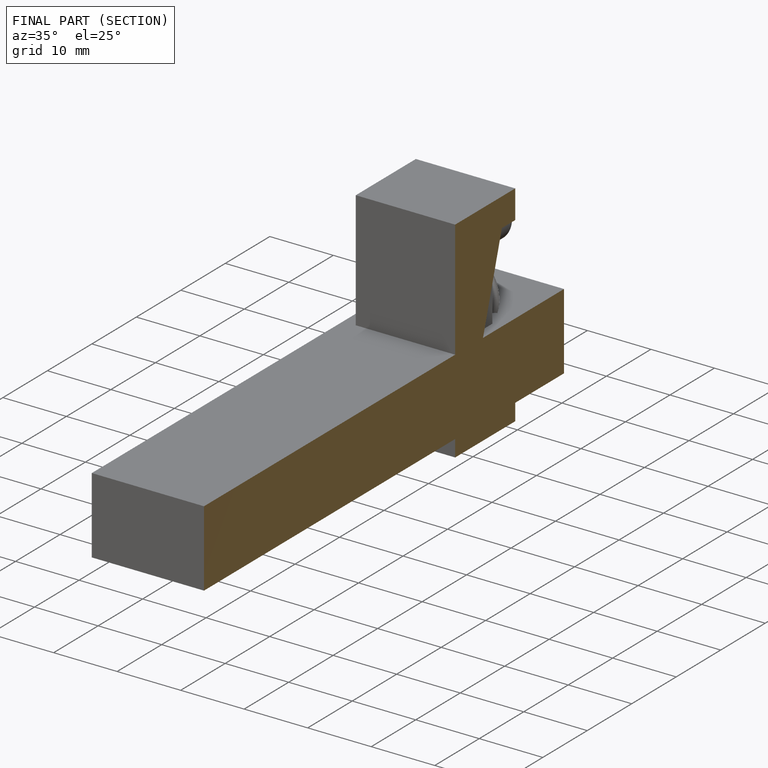
[diagram: finished part — half-section view (interior)]
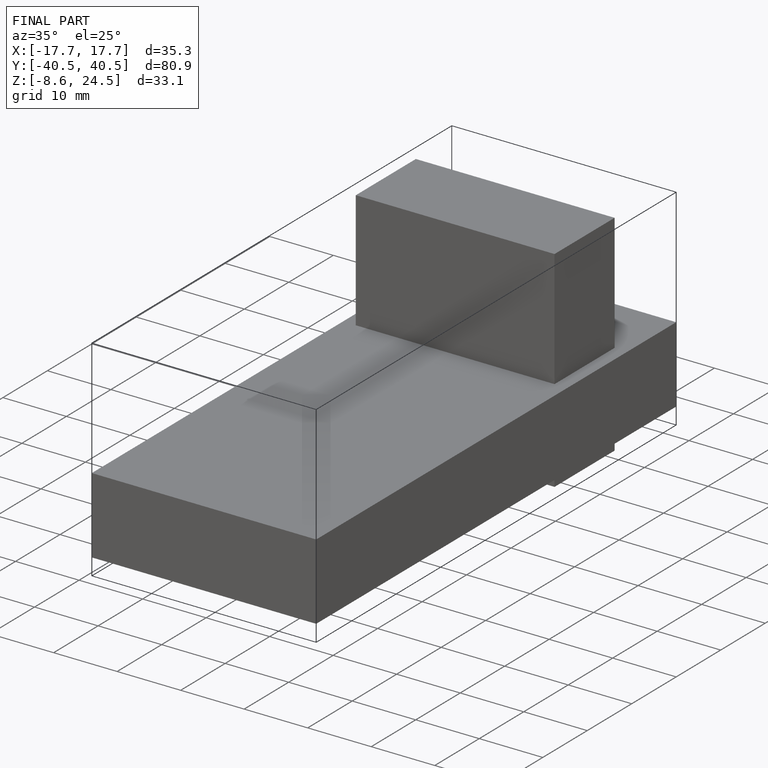
[diagram: finished part — iso view with bounding-box wireframe]
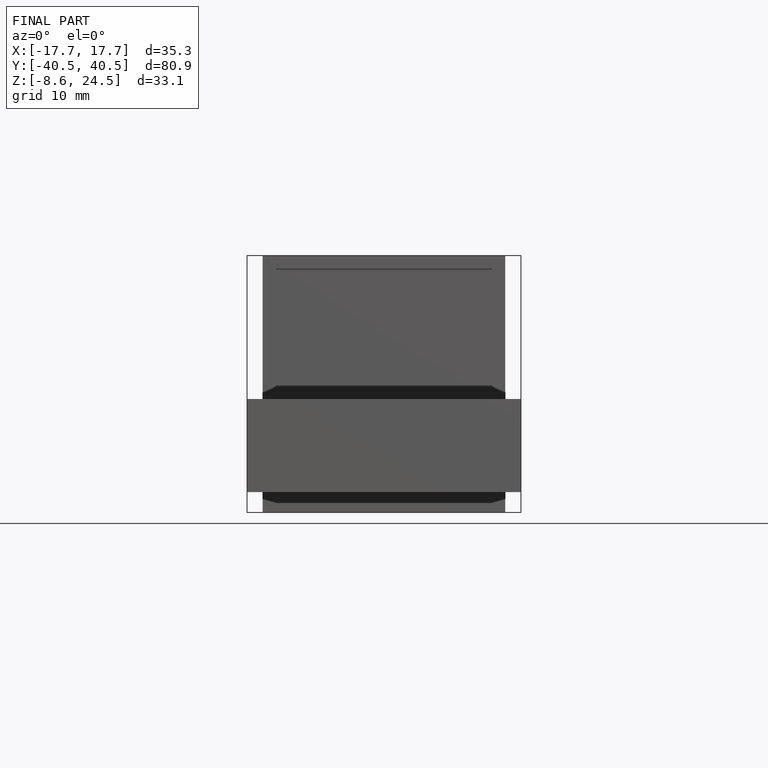
[diagram: finished part — front view with bounding-box wireframe]
